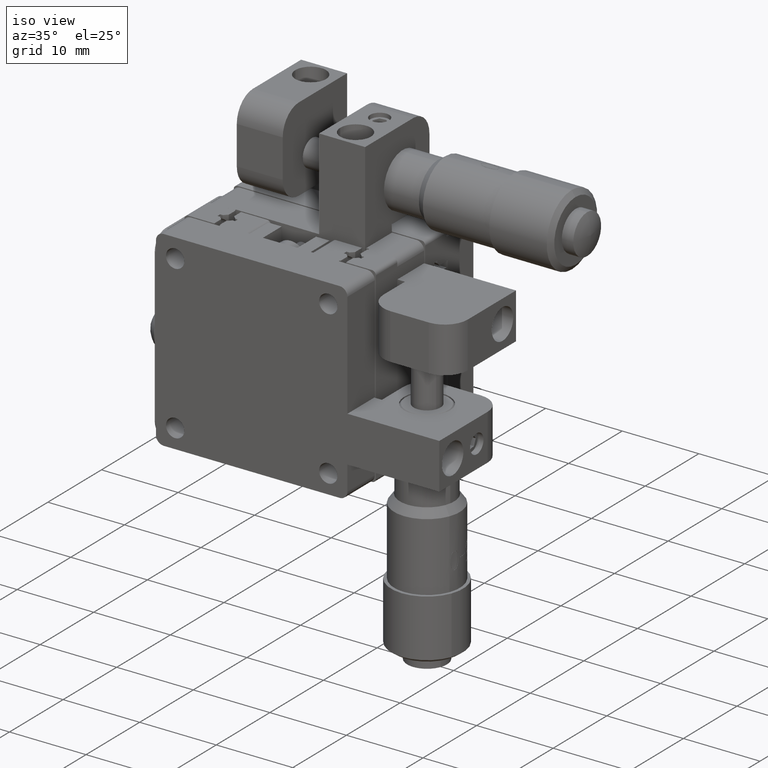
[diagram: clean part render]
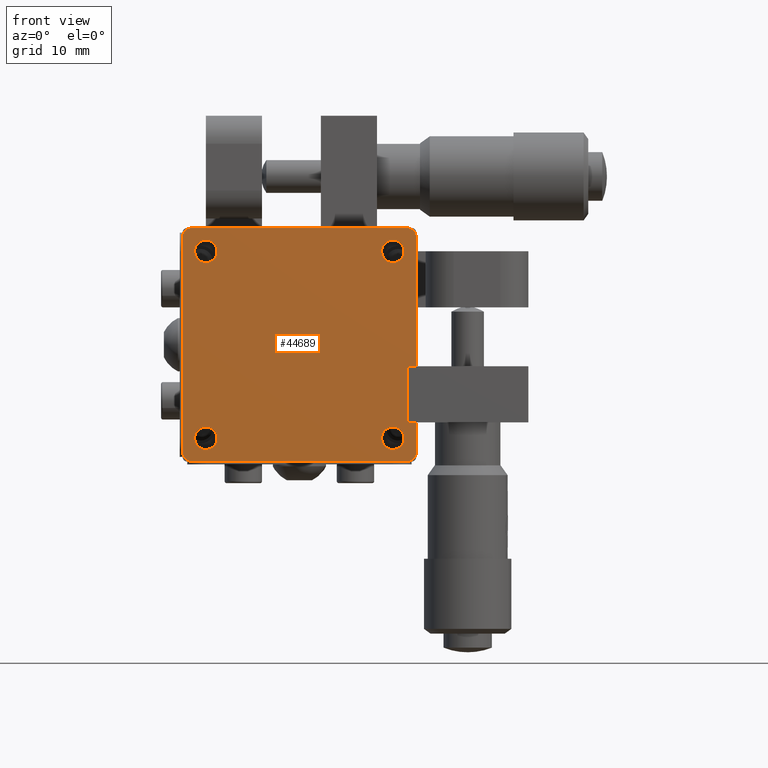
[diagram: tour spotlight — one face highlighted and labeled with its STEP entity id]
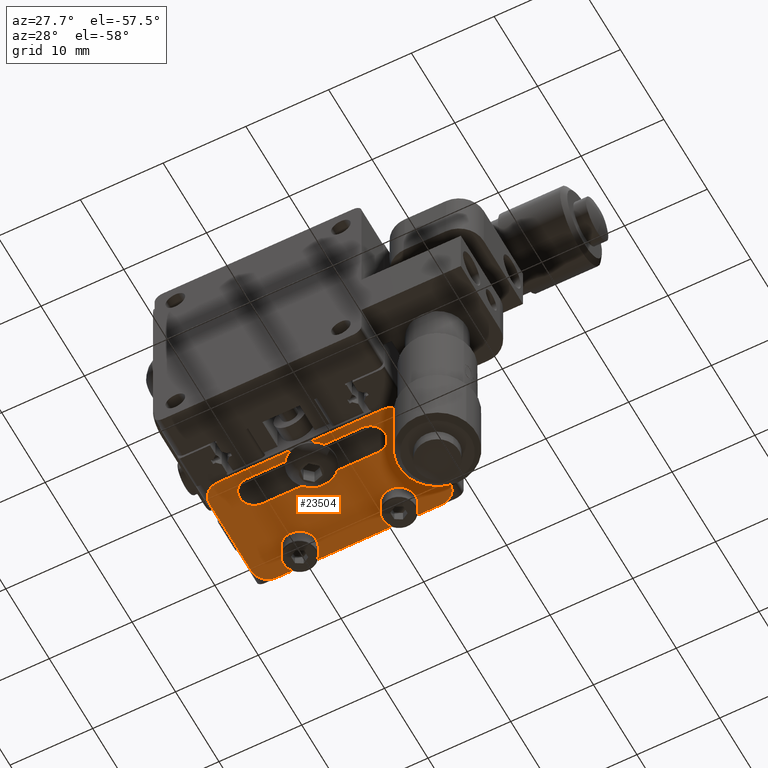
[diagram: tour spotlight — one face highlighted and labeled with its STEP entity id]
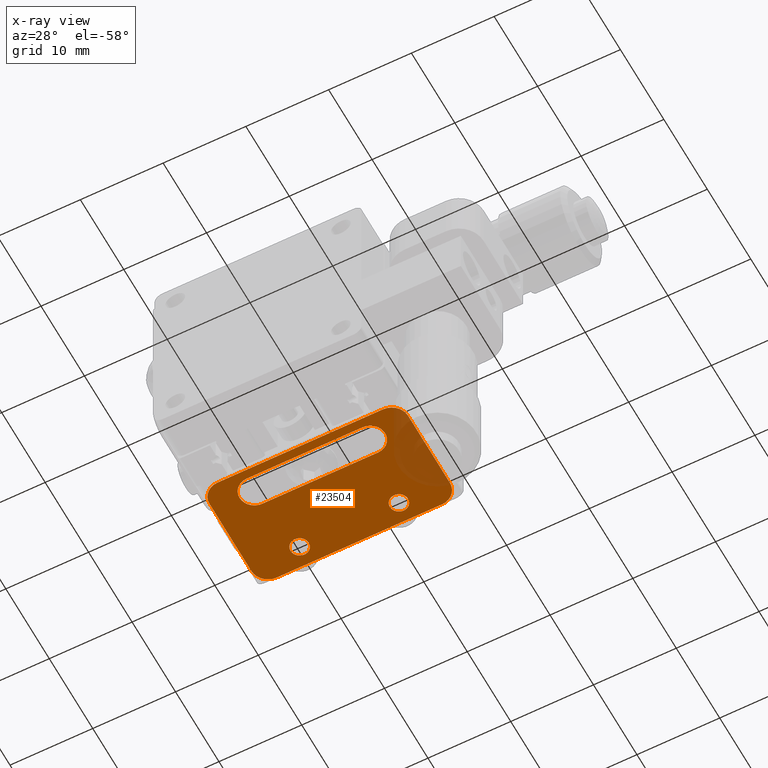
[diagram: x-ray of the same camera — body ghosted, this tour face saturated]
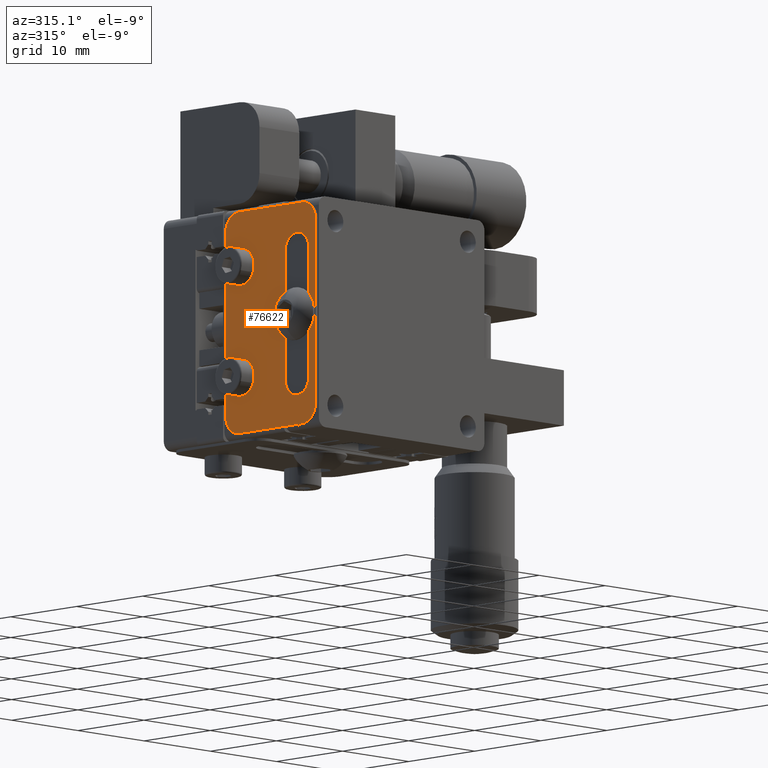
[diagram: tour spotlight — one face highlighted and labeled with its STEP entity id]
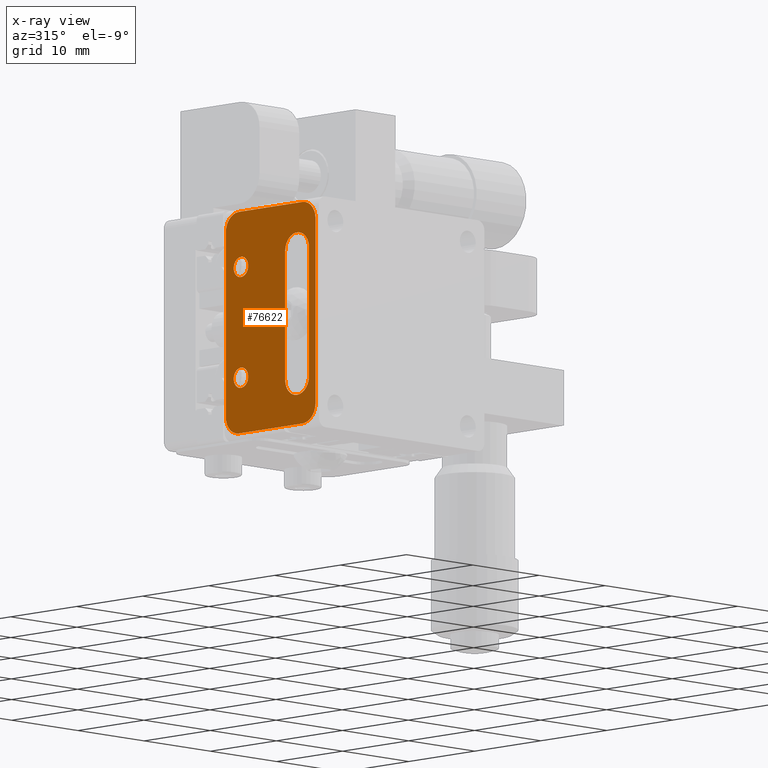
[diagram: x-ray of the same camera — body ghosted, this tour face saturated]
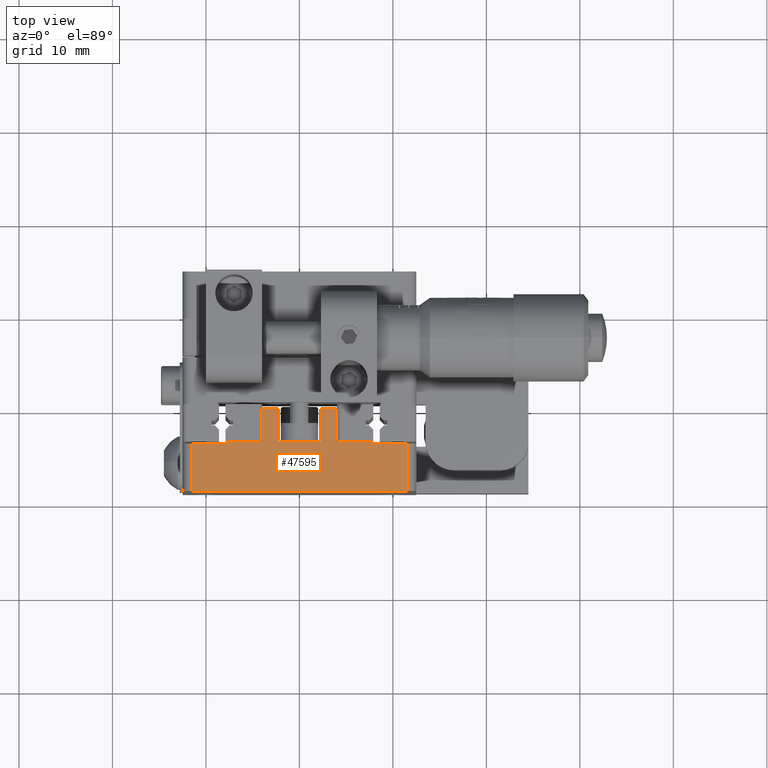
[diagram: tour spotlight — one face highlighted and labeled with its STEP entity id]
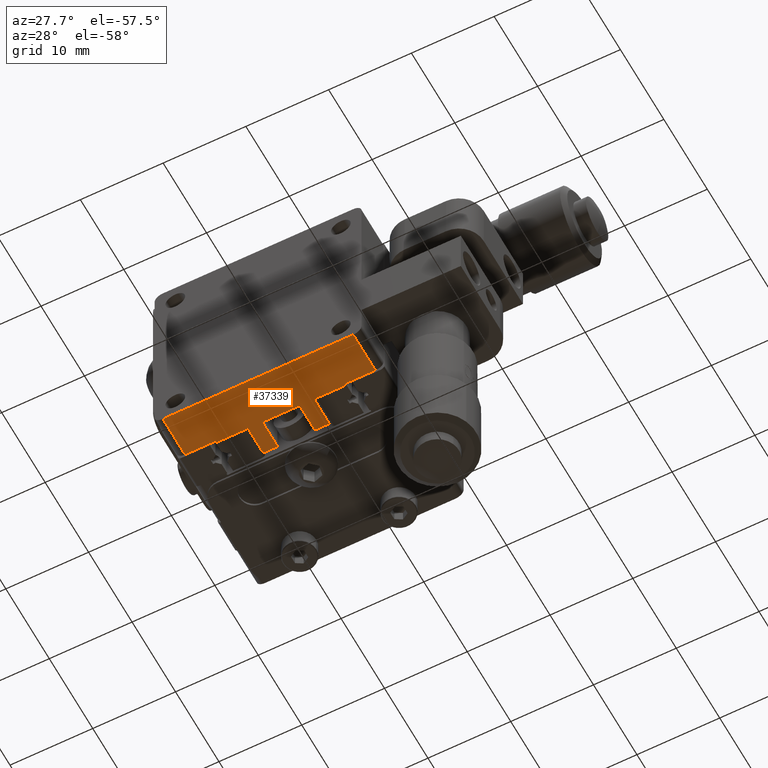
[diagram: tour spotlight — one face highlighted and labeled with its STEP entity id]
A machine part: a face-by-face anatomy tour. The part has 2441 B-rep faces; the first image is the clean iso view, then the 5 largest visible faces are spotlighted one at a time (largest first), each with its STEP entity span.

Face 1 — front view, entity #44689. In plain terms, the highlighted planar face has unit normal (-0, 1, 0).
Definition (entity closure, byte-faithful):
#188 = CARTESIAN_POINT ( 'NONE',  ( -9.999999999999985800, -9.100000000000006800, 10.00000000000000200 ) ) ;
#231 = CARTESIAN_POINT ( 'NONE',  ( -9.999999999999985800, -9.100000000000006800, 8.800000000000004300 ) ) ;
#1613 = ORIENTED_EDGE ( 'NONE', *, *, #65266, .F. ) ;
#4194 = CARTESIAN_POINT ( 'NONE',  ( 10.00000000000001200, -9.100000000000003200, 8.800000000000004300 ) ) ;
#4414 = ORIENTED_EDGE ( 'NONE', *, *, #5681, .T. ) ;
#4537 = EDGE_LOOP ( 'NONE', ( #34926, #17723 ) ) ;
#5005 = ORIENTED_EDGE ( 'NONE', *, *, #20297, .T. ) ;
#5681 = EDGE_CURVE ( 'NONE', #59212, #47392, #50106, .T. ) ;
#5941 = FACE_BOUND ( 'NONE', #45751, .T. ) ;
#7799 = LINE ( 'NONE', #34681, #13582 ) ;
#8628 = CIRCLE ( 'NONE', #27375, 1.000000000000000900 ) ;
#8845 = EDGE_LOOP ( 'NONE', ( #45325, #85805, #1613, #67609, #25484, #79870, #5005, #50121, #56410, #45061, #92503, #13355 ) ) ;
#9909 = CARTESIAN_POINT ( 'NONE',  ( -12.49999999999998400, -9.100000000000001400, 12.50000000000000000 ) ) ;
#10671 = VERTEX_POINT ( 'NONE', #39331 ) ;
#11866 = DIRECTION ( 'NONE',  ( -1.000000000000000000, -1.224646799147353200E-016, 0.0000000000000000000 ) ) ;
#12055 = VERTEX_POINT ( 'NONE', #66267 ) ;
#12358 = VERTEX_POINT ( 'NONE', #82427 ) ;
#12542 = DIRECTION ( 'NONE',  ( 0.0000000000000000000, 0.0000000000000000000, 1.000000000000000000 ) ) ;
#13355 = ORIENTED_EDGE ( 'NONE', *, *, #67647, .F. ) ;
#13582 = VECTOR ( 'NONE', #86579, 1000.000000000000000 ) ;
#14695 = EDGE_CURVE ( 'NONE', #74162, #64838, #30512, .T. ) ;
#14966 = CARTESIAN_POINT ( 'NONE',  ( -12.49999999999998400, -9.100000000000001400, 12.50000000000000000 ) ) ;
#15859 = CARTESIAN_POINT ( 'NONE',  ( -11.49999999999998200, -9.100000000000001400, 11.50000000000000000 ) ) ;
#16736 = AXIS2_PLACEMENT_3D ( 'NONE', #76030, #17253, #61436 ) ;
#16742 = VERTEX_POINT ( 'NONE', #66318 ) ;
#16806 = DIRECTION ( 'NONE',  ( 1.224646799147353200E-016, -1.000000000000000000, -0.0000000000000000000 ) ) ;
#17141 = CARTESIAN_POINT ( 'NONE',  ( -9.999999999999985800, -9.100000000000006800, 10.00000000000000200 ) ) ;
#17253 = DIRECTION ( 'NONE',  ( -0.0000000000000000000, 1.000000000000000000, -0.0000000000000000000 ) ) ;
#17383 = DIRECTION ( 'NONE',  ( 1.000000000000000000, 1.224646799147353200E-016, 0.0000000000000000000 ) ) ;
#17723 = ORIENTED_EDGE ( 'NONE', *, *, #92371, .T. ) ;
#17768 = VERTEX_POINT ( 'NONE', #64488 ) ;
#18709 = VECTOR ( 'NONE', #47813, 1000.000000000000000 ) ;
#19582 = CARTESIAN_POINT ( 'NONE',  ( 12.50000000000002100, -9.099999999999997900, -2.299999999999998900 ) ) ;
#19692 = DIRECTION ( 'NONE',  ( 1.224646799147353200E-016, -1.000000000000000000, -0.0000000000000000000 ) ) ;
#20297 = EDGE_CURVE ( 'NONE', #12055, #95181, #63461, .T. ) ;
#20409 = AXIS2_PLACEMENT_3D ( 'NONE', #34356, #41805, #11866 ) ;
#21313 = DIRECTION ( 'NONE',  ( 0.0000000000000000000, 0.0000000000000000000, -1.000000000000000000 ) ) ;
#21377 = DIRECTION ( 'NONE',  ( 0.0000000000000000000, 0.0000000000000000000, 1.000000000000000000 ) ) ;
#21799 = DIRECTION ( 'NONE',  ( -0.0000000000000000000, -0.0000000000000000000, -1.000000000000000000 ) ) ;
#22059 = EDGE_CURVE ( 'NONE', #47392, #59212, #56257, .T. ) ;
#22702 = CARTESIAN_POINT ( 'NONE',  ( -11.49999999999998200, -9.100000000000001400, -12.50000000000000000 ) ) ;
#22954 = EDGE_CURVE ( 'NONE', #16742, #12358, #27764, .T. ) ;
#23452 = CARTESIAN_POINT ( 'NONE',  ( 11.50000000000002100, -9.099999999999997900, -2.299999999999998900 ) ) ;
#24794 = CIRCLE ( 'NONE', #46499, 1.000000000000000900 ) ;
#25358 = CARTESIAN_POINT ( 'NONE',  ( 10.00000000000001200, -9.100000000000003200, 11.19999999999999900 ) ) ;
#25458 = CARTESIAN_POINT ( 'NONE',  ( 12.50000000000002100, -9.099999999999997900, -8.299999999999998900 ) ) ;
#25484 = ORIENTED_EDGE ( 'NONE', *, *, #82790, .F. ) ;
#26529 = PLANE ( 'NONE',  #20409 ) ;
#27375 = AXIS2_PLACEMENT_3D ( 'NONE', #33041, #76485, #40490 ) ;
#27764 = CIRCLE ( 'NONE', #16736, 1.199999999999998000 ) ;
#28420 = CARTESIAN_POINT ( 'NONE',  ( 11.50000000000002100, -9.099999999999997900, -8.299999999999998900 ) ) ;
#28584 = DIRECTION ( 'NONE',  ( -0.0000000000000000000, 1.000000000000000000, -0.0000000000000000000 ) ) ;
#29569 = AXIS2_PLACEMENT_3D ( 'NONE', #17141, #69030, #68722 ) ;
#30065 = AXIS2_PLACEMENT_3D ( 'NONE', #56983, #86840, #42386 ) ;
#30254 = DIRECTION ( 'NONE',  ( -0.0000000000000000000, 1.000000000000000000, -0.0000000000000000000 ) ) ;
#30512 = LINE ( 'NONE', #23452, #80335 ) ;
#32557 = EDGE_CURVE ( 'NONE', #17768, #85304, #89250, .T. ) ;
#32801 = LINE ( 'NONE', #69471, #18709 ) ;
#32885 = FACE_BOUND ( 'NONE', #79244, .T. ) ;
#33041 = CARTESIAN_POINT ( 'NONE',  ( 11.50000000000002100, -9.099999999999997900, 11.50000000000000000 ) ) ;
#34356 = CARTESIAN_POINT ( 'NONE',  ( -12.49999999999998400, -9.100000000000001400, 12.50000000000000000 ) ) ;
#34397 = CARTESIAN_POINT ( 'NONE',  ( 11.50000000000002100, -9.099999999999997900, -11.50000000000000000 ) ) ;
#34681 = CARTESIAN_POINT ( 'NONE',  ( -12.49999999999998400, -9.100000000000001400, -12.50000000000000000 ) ) ;
#34926 = ORIENTED_EDGE ( 'NONE', *, *, #32557, .T. ) ;
#35332 = EDGE_CURVE ( 'NONE', #95181, #87604, #71428, .T. ) ;
#35899 = DIRECTION ( 'NONE',  ( 1.000000000000000000, -0.0000000000000000000, -0.0000000000000000000 ) ) ;
#37733 = VERTEX_POINT ( 'NONE', #25458 ) ;
#38026 = DIRECTION ( 'NONE',  ( -1.000000000000000000, 0.0000000000000000000, 0.0000000000000000000 ) ) ;
#38242 = VERTEX_POINT ( 'NONE', #85074 ) ;
#38574 = ORIENTED_EDGE ( 'NONE', *, *, #96428, .T. ) ;
#38965 = CARTESIAN_POINT ( 'NONE',  ( 11.50000000000002100, -9.099999999999997900, -8.299999999999998900 ) ) ;
#39146 = AXIS2_PLACEMENT_3D ( 'NONE', #81161, #30254, #89644 ) ;
#39331 = CARTESIAN_POINT ( 'NONE',  ( -9.999999999999985800, -9.100000000000006800, 11.19999999999999900 ) ) ;
#39892 = DIRECTION ( 'NONE',  ( -0.0000000000000000000, 1.000000000000000000, -0.0000000000000000000 ) ) ;
#40490 = DIRECTION ( 'NONE',  ( -1.000000000000000000, 0.0000000000000000000, 0.0000000000000000000 ) ) ;
#41805 = DIRECTION ( 'NONE',  ( -1.224646799147353200E-016, 1.000000000000000000, 0.0000000000000000000 ) ) ;
#41872 = ORIENTED_EDGE ( 'NONE', *, *, #75520, .T. ) ;
#42386 = DIRECTION ( 'NONE',  ( -1.000000000000000000, 0.0000000000000000000, 0.0000000000000000000 ) ) ;
#42467 = CARTESIAN_POINT ( 'NONE',  ( 10.00000000000001200, -9.100000000000003200, 10.00000000000000200 ) ) ;
#42695 = EDGE_CURVE ( 'NONE', #65428, #74225, #24794, .T. ) ;
#43194 = FACE_BOUND ( 'NONE', #4537, .T. ) ;
#43308 = FACE_BOUND ( 'NONE', #90505, .T. ) ;
#43967 = CARTESIAN_POINT ( 'NONE',  ( 11.50000000000002100, -9.099999999999997900, -2.299999999999998900 ) ) ;
#44140 = CARTESIAN_POINT ( 'NONE',  ( 10.00000000000001200, -9.100000000000003200, -9.999999999999998200 ) ) ;
#44689 = ADVANCED_FACE ( 'NONE', ( #5941, #43194, #32885, #43308, #50310 ), #26529, .F. ) ;
#45061 = ORIENTED_EDGE ( 'NONE', *, *, #42695, .T. ) ;
#45325 = ORIENTED_EDGE ( 'NONE', *, *, #46557, .F. ) ;
#45596 = CARTESIAN_POINT ( 'NONE',  ( 11.50000000000002100, -9.099999999999997900, 12.50000000000000000 ) ) ;
#45663 = CIRCLE ( 'NONE', #62864, 1.199999999999998000 ) ;
#45751 = EDGE_LOOP ( 'NONE', ( #38574, #48539 ) ) ;
#46318 = CARTESIAN_POINT ( 'NONE',  ( 12.50000000000002100, -9.099999999999997900, 12.50000000000000000 ) ) ;
#46499 = AXIS2_PLACEMENT_3D ( 'NONE', #34397, #19692, #71601 ) ;
#46557 = EDGE_CURVE ( 'NONE', #74162, #56496, #51220, .T. ) ;
#47392 = VERTEX_POINT ( 'NONE', #4194 ) ;
#47813 = DIRECTION ( 'NONE',  ( -0.0000000000000000000, -0.0000000000000000000, -1.000000000000000000 ) ) ;
#48539 = ORIENTED_EDGE ( 'NONE', *, *, #22954, .T. ) ;
#49338 = VERTEX_POINT ( 'NONE', #45596 ) ;
#49575 = VECTOR ( 'NONE', #21799, 1000.000000000000000 ) ;
#50100 = DIRECTION ( 'NONE',  ( -0.0000000000000000000, 1.000000000000000000, -0.0000000000000000000 ) ) ;
#50106 = CIRCLE ( 'NONE', #74206, 1.199999999999998000 ) ;
#50121 = ORIENTED_EDGE ( 'NONE', *, *, #35332, .T. ) ;
#50310 = FACE_OUTER_BOUND ( 'NONE', #8845, .T. ) ;
#50555 = LINE ( 'NONE', #28420, #57500 ) ;
#51220 = LINE ( 'NONE', #65753, #76653 ) ;
#52131 = CIRCLE ( 'NONE', #58116, 1.199999999999998000 ) ;
#52263 = DIRECTION ( 'NONE',  ( -0.0000000000000000000, 1.000000000000000000, -0.0000000000000000000 ) ) ;
#52509 = CIRCLE ( 'NONE', #85523, 1.000000000000000900 ) ;
#52830 = AXIS2_PLACEMENT_3D ( 'NONE', #42467, #78423, #12542 ) ;
#53537 = DIRECTION ( 'NONE',  ( 0.0000000000000000000, 0.0000000000000000000, 1.000000000000000000 ) ) ;
#56257 = CIRCLE ( 'NONE', #52830, 1.199999999999998000 ) ;
#56410 = ORIENTED_EDGE ( 'NONE', *, *, #74385, .T. ) ;
#56496 = VERTEX_POINT ( 'NONE', #38965 ) ;
#56983 = CARTESIAN_POINT ( 'NONE',  ( -11.49999999999998200, -9.100000000000001400, -11.50000000000000000 ) ) ;
#57500 = VECTOR ( 'NONE', #35899, 1000.000000000000000 ) ;
#58116 = AXIS2_PLACEMENT_3D ( 'NONE', #75878, #39892, #76198 ) ;
#58596 = ORIENTED_EDGE ( 'NONE', *, *, #84468, .T. ) ;
#58885 = CARTESIAN_POINT ( 'NONE',  ( 12.50000000000002100, -9.099999999999997900, -11.50000000000000000 ) ) ;
#59212 = VERTEX_POINT ( 'NONE', #25358 ) ;
#61436 = DIRECTION ( 'NONE',  ( 0.0000000000000000000, 0.0000000000000000000, 1.000000000000000000 ) ) ;
#62014 = VERTEX_POINT ( 'NONE', #74065 ) ;
#62864 = AXIS2_PLACEMENT_3D ( 'NONE', #188, #52263, #53537 ) ;
#63461 = LINE ( 'NONE', #14966, #49575 ) ;
#64488 = CARTESIAN_POINT ( 'NONE',  ( 10.00000000000001200, -9.100000000000003200, -8.800000000000000700 ) ) ;
#64838 = VERTEX_POINT ( 'NONE', #19582 ) ;
#65266 = EDGE_CURVE ( 'NONE', #62014, #64838, #32801, .T. ) ;
#65278 = CARTESIAN_POINT ( 'NONE',  ( 10.00000000000001200, -9.100000000000003200, 10.00000000000000200 ) ) ;
#65428 = VERTEX_POINT ( 'NONE', #86593 ) ;
#65498 = LINE ( 'NONE', #9909, #67826 ) ;
#65753 = CARTESIAN_POINT ( 'NONE',  ( 11.50000000000002100, -9.099999999999997900, -2.299999999999998900 ) ) ;
#66267 = CARTESIAN_POINT ( 'NONE',  ( -12.49999999999998400, -9.100000000000001400, 11.50000000000000000 ) ) ;
#66318 = CARTESIAN_POINT ( 'NONE',  ( -9.999999999999985800, -9.100000000000006800, -11.19999999999999600 ) ) ;
#66632 = VERTEX_POINT ( 'NONE', #231 ) ;
#67609 = ORIENTED_EDGE ( 'NONE', *, *, #81977, .T. ) ;
#67647 = EDGE_CURVE ( 'NONE', #56496, #37733, #50555, .T. ) ;
#67826 = VECTOR ( 'NONE', #17383, 1000.000000000000000 ) ;
#68611 = DIRECTION ( 'NONE',  ( -0.0000000000000000000, -0.0000000000000000000, -1.000000000000000000 ) ) ;
#68722 = DIRECTION ( 'NONE',  ( 0.0000000000000000000, 0.0000000000000000000, 1.000000000000000000 ) ) ;
#68813 = DIRECTION ( 'NONE',  ( 1.000000000000000000, -0.0000000000000000000, -0.0000000000000000000 ) ) ;
#69030 = DIRECTION ( 'NONE',  ( -0.0000000000000000000, 1.000000000000000000, -0.0000000000000000000 ) ) ;
#69471 = CARTESIAN_POINT ( 'NONE',  ( 12.50000000000002100, -9.099999999999997900, 12.50000000000000000 ) ) ;
#69505 = CARTESIAN_POINT ( 'NONE',  ( 10.00000000000001200, -9.100000000000003200, -11.19999999999999600 ) ) ;
#71428 = CIRCLE ( 'NONE', #30065, 1.000000000000000900 ) ;
#71601 = DIRECTION ( 'NONE',  ( -1.000000000000000000, 0.0000000000000000000, 0.0000000000000000000 ) ) ;
#74065 = CARTESIAN_POINT ( 'NONE',  ( 12.50000000000002100, -9.099999999999997900, 11.50000000000000000 ) ) ;
#74162 = VERTEX_POINT ( 'NONE', #43967 ) ;
#74206 = AXIS2_PLACEMENT_3D ( 'NONE', #65278, #50100, #78902 ) ;
#74225 = VERTEX_POINT ( 'NONE', #58885 ) ;
#74385 = EDGE_CURVE ( 'NONE', #87604, #65428, #7799, .T. ) ;
#75520 = EDGE_CURVE ( 'NONE', #10671, #66632, #89745, .T. ) ;
#75878 = CARTESIAN_POINT ( 'NONE',  ( -9.999999999999985800, -9.100000000000006800, -9.999999999999998200 ) ) ;
#76030 = CARTESIAN_POINT ( 'NONE',  ( -9.999999999999985800, -9.100000000000006800, -9.999999999999998200 ) ) ;
#76198 = DIRECTION ( 'NONE',  ( 0.0000000000000000000, 0.0000000000000000000, 1.000000000000000000 ) ) ;
#76485 = DIRECTION ( 'NONE',  ( 1.224646799147353200E-016, -1.000000000000000000, -0.0000000000000000000 ) ) ;
#76653 = VECTOR ( 'NONE', #21313, 1000.000000000000000 ) ;
#76763 = EDGE_CURVE ( 'NONE', #38242, #12055, #52509, .T. ) ;
#78423 = DIRECTION ( 'NONE',  ( -0.0000000000000000000, 1.000000000000000000, -0.0000000000000000000 ) ) ;
#78902 = DIRECTION ( 'NONE',  ( 0.0000000000000000000, 0.0000000000000000000, 1.000000000000000000 ) ) ;
#79244 = EDGE_LOOP ( 'NONE', ( #4414, #90782 ) ) ;
#79599 = VECTOR ( 'NONE', #68611, 1000.000000000000000 ) ;
#79870 = ORIENTED_EDGE ( 'NONE', *, *, #76763, .T. ) ;
#80335 = VECTOR ( 'NONE', #68813, 1000.000000000000000 ) ;
#81161 = CARTESIAN_POINT ( 'NONE',  ( 10.00000000000001200, -9.100000000000003200, -9.999999999999998200 ) ) ;
#81209 = EDGE_CURVE ( 'NONE', #37733, #74225, #86628, .T. ) ;
#81977 = EDGE_CURVE ( 'NONE', #62014, #49338, #8628, .T. ) ;
#82427 = CARTESIAN_POINT ( 'NONE',  ( -9.999999999999985800, -9.100000000000006800, -8.800000000000000700 ) ) ;
#82790 = EDGE_CURVE ( 'NONE', #38242, #49338, #65498, .T. ) ;
#84468 = EDGE_CURVE ( 'NONE', #66632, #10671, #45663, .T. ) ;
#84979 = CIRCLE ( 'NONE', #90258, 1.199999999999998000 ) ;
#85074 = CARTESIAN_POINT ( 'NONE',  ( -11.49999999999998200, -9.100000000000001400, 12.50000000000000000 ) ) ;
#85304 = VERTEX_POINT ( 'NONE', #69505 ) ;
#85523 = AXIS2_PLACEMENT_3D ( 'NONE', #15859, #16806, #38026 ) ;
#85805 = ORIENTED_EDGE ( 'NONE', *, *, #14695, .T. ) ;
#86579 = DIRECTION ( 'NONE',  ( 1.000000000000000000, 1.224646799147353200E-016, 0.0000000000000000000 ) ) ;
#86593 = CARTESIAN_POINT ( 'NONE',  ( 11.50000000000002100, -9.099999999999997900, -12.50000000000000000 ) ) ;
#86628 = LINE ( 'NONE', #46318, #79599 ) ;
#86840 = DIRECTION ( 'NONE',  ( 1.224646799147353200E-016, -1.000000000000000000, -0.0000000000000000000 ) ) ;
#87604 = VERTEX_POINT ( 'NONE', #22702 ) ;
#89250 = CIRCLE ( 'NONE', #39146, 1.199999999999998000 ) ;
#89644 = DIRECTION ( 'NONE',  ( 0.0000000000000000000, 0.0000000000000000000, 1.000000000000000000 ) ) ;
#89745 = CIRCLE ( 'NONE', #29569, 1.199999999999998000 ) ;
#90258 = AXIS2_PLACEMENT_3D ( 'NONE', #44140, #28584, #21377 ) ;
#90505 = EDGE_LOOP ( 'NONE', ( #41872, #58596 ) ) ;
#90782 = ORIENTED_EDGE ( 'NONE', *, *, #22059, .T. ) ;
#92241 = CARTESIAN_POINT ( 'NONE',  ( -12.49999999999998400, -9.100000000000001400, -11.50000000000000000 ) ) ;
#92371 = EDGE_CURVE ( 'NONE', #85304, #17768, #84979, .T. ) ;
#92503 = ORIENTED_EDGE ( 'NONE', *, *, #81209, .F. ) ;
#95181 = VERTEX_POINT ( 'NONE', #92241 ) ;
#96428 = EDGE_CURVE ( 'NONE', #12358, #16742, #52131, .T. ) ;

Face 2 — auxiliary view, entity #23504. An x-ray twin of the same camera follows (body ghosted, this face saturated) — the face is partly hidden behind the body. In plain terms, the highlighted planar face has unit normal (-0, -0, -1).
Definition (entity closure, byte-faithful):
#260 = DIRECTION ( 'NONE',  ( 1.000000000000000000, -9.692600756110412900E-016, -6.047645734845986500E-016 ) ) ;
#617 = EDGE_CURVE ( 'NONE', #49656, #79320, #2215, .T. ) ;
#979 = ORIENTED_EDGE ( 'NONE', *, *, #57764, .T. ) ;
#1431 = CARTESIAN_POINT ( 'NONE',  ( -5.999999999999870300, 11.89999999999998400, -12.80000000000002000 ) ) ;
#1879 = ORIENTED_EDGE ( 'NONE', *, *, #58968, .T. ) ;
#2215 = CIRCLE ( 'NONE', #50396, 1.799999999999996000 ) ;
#2654 = EDGE_CURVE ( 'NONE', #89813, #23583, #31139, .T. ) ;
#2892 = CARTESIAN_POINT ( 'NONE',  ( -9.999999999999881000, 0.5999999999999912100, -12.80000000000003100 ) ) ;
#4857 = VERTEX_POINT ( 'NONE', #14200 ) ;
#5079 = CARTESIAN_POINT ( 'NONE',  ( 4.900000000000088300, 11.89999999999997200, -12.80000000000005900 ) ) ;
#5582 = CIRCLE ( 'NONE', #72668, 1.099999999999996800 ) ;
#6820 = LINE ( 'NONE', #37211, #76516 ) ;
#8056 = AXIS2_PLACEMENT_3D ( 'NONE', #40351, #54964, #17881 ) ;
#9497 = EDGE_CURVE ( 'NONE', #51261, #14415, #82269, .T. ) ;
#9604 = DIRECTION ( 'NONE',  ( -1.000000000000000000, 1.577021341797101900E-015, 0.0000000000000000000 ) ) ;
#9886 = VERTEX_POINT ( 'NONE', #54159 ) ;
#10639 = ORIENTED_EDGE ( 'NONE', *, *, #23123, .T. ) ;
#11162 = CARTESIAN_POINT ( 'NONE',  ( 6.000000000000085300, 11.89999999999997000, -12.80000000000005900 ) ) ;
#12174 = ORIENTED_EDGE ( 'NONE', *, *, #9497, .T. ) ;
#12515 = AXIS2_PLACEMENT_3D ( 'NONE', #67251, #60797, #53068 ) ;
#13161 = LINE ( 'NONE', #18101, #50393 ) ;
#13594 = LINE ( 'NONE', #19980, #87989 ) ;
#14200 = CARTESIAN_POINT ( 'NONE',  ( -11.99999999999986900, 12.19999999999997600, -12.80000000000005200 ) ) ;
#14415 = VERTEX_POINT ( 'NONE', #50480 ) ;
#14722 = EDGE_CURVE ( 'NONE', #89895, #27323, #51470, .T. ) ;
#16430 = AXIS2_PLACEMENT_3D ( 'NONE', #1431, #53169, #67669 ) ;
#16496 = EDGE_CURVE ( 'NONE', #26240, #90314, #47599, .T. ) ;
#17881 = DIRECTION ( 'NONE',  ( 1.000000000000000000, -8.673617379884057200E-016, -8.673617379884057200E-016 ) ) ;
#18101 = CARTESIAN_POINT ( 'NONE',  ( 12.00000000000006200, 0.5999999999999634500, -12.80000000000005600 ) ) ;
#18242 = ORIENTED_EDGE ( 'NONE', *, *, #81206, .F. ) ;
#19980 = CARTESIAN_POINT ( 'NONE',  ( 12.00000000000006200, 14.19999999999996200, -12.80000000000004500 ) ) ;
#20701 = VERTEX_POINT ( 'NONE', #40656 ) ;
#22786 = EDGE_CURVE ( 'NONE', #79320, #51261, #6820, .T. ) ;
#23123 = EDGE_CURVE ( 'NONE', #4857, #74888, #24279, .T. ) ;
#23347 = CARTESIAN_POINT ( 'NONE',  ( 12.00000000000006200, 14.19999999999996200, -12.80000000000004500 ) ) ;
#23504 = ADVANCED_FACE ( 'NONE', ( #42514, #43653, #72618, #58728 ), #45141, .T. ) ;
#23583 = VERTEX_POINT ( 'NONE', #37747 ) ;
#23624 = ORIENTED_EDGE ( 'NONE', *, *, #95558, .T. ) ;
#23784 = EDGE_LOOP ( 'NONE', ( #12174, #1879, #77137, #50968, #70852 ) ) ;
#24055 = DIRECTION ( 'NONE',  ( -1.000000000000000000, 9.637352644315620400E-016, 9.637352644315620400E-016 ) ) ;
#24279 = CIRCLE ( 'NONE', #8056, 1.999999999999994900 ) ;
#25006 = DIRECTION ( 'NONE',  ( 1.670591783853796100E-016, 1.276756478318937500E-015, 1.000000000000000000 ) ) ;
#26240 = VERTEX_POINT ( 'NONE', #5079 ) ;
#26807 = CARTESIAN_POINT ( 'NONE',  ( -6.999999999999877400, 3.399999999999986100, -12.80000000000001500 ) ) ;
#27323 = VERTEX_POINT ( 'NONE', #65565 ) ;
#27397 = CARTESIAN_POINT ( 'NONE',  ( -9.999999999999863200, 14.19999999999997300, -12.80000000000002000 ) ) ;
#28059 = AXIS2_PLACEMENT_3D ( 'NONE', #82738, #32812, #52948 ) ;
#28209 = EDGE_CURVE ( 'NONE', #89813, #82807, #13161, .T. ) ;
#29571 = CARTESIAN_POINT ( 'NONE',  ( -6.999999999999877400, 3.399999999999986100, -12.80000000000001500 ) ) ;
#30319 = CIRCLE ( 'NONE', #12515, 1.999999999999994900 ) ;
#31139 = CIRCLE ( 'NONE', #28059, 1.999999999999994900 ) ;
#31202 = AXIS2_PLACEMENT_3D ( 'NONE', #75602, #90281, #260 ) ;
#31382 = EDGE_LOOP ( 'NONE', ( #54401, #86324 ) ) ;
#32812 = DIRECTION ( 'NONE',  ( -1.670591783853796100E-016, -1.276756478318937500E-015, -1.000000000000000000 ) ) ;
#32836 = CARTESIAN_POINT ( 'NONE',  ( 12.00000000000007800, 12.19999999999996200, -12.80000000000002700 ) ) ;
#33326 = DIRECTION ( 'NONE',  ( -1.000000000000000000, 1.577021341797101900E-015, 0.0000000000000000000 ) ) ;
#33944 = CARTESIAN_POINT ( 'NONE',  ( -6.999999999999874800, 5.199999999999986000, -12.80000000000003300 ) ) ;
#34299 = DIRECTION ( 'NONE',  ( -1.000000000000000000, 9.637352644315616400E-016, 9.637352644315616400E-016 ) ) ;
#35864 = EDGE_LOOP ( 'NONE', ( #39903, #23624 ) ) ;
#36217 = VERTEX_POINT ( 'NONE', #32836 ) ;
#36362 = AXIS2_PLACEMENT_3D ( 'NONE', #11162, #77693, #33326 ) ;
#37211 = CARTESIAN_POINT ( 'NONE',  ( 7.000000000000073700, 1.599999999999971200, -12.80000000000005400 ) ) ;
#37680 = AXIS2_PLACEMENT_3D ( 'NONE', #26807, #85888, #34299 ) ;
#37747 = CARTESIAN_POINT ( 'NONE',  ( -11.99999999999987900, 2.599999999999977400, -12.80000000000004700 ) ) ;
#38156 = VECTOR ( 'NONE', #74181, 1000.000000000000000 ) ;
#38498 = AXIS2_PLACEMENT_3D ( 'NONE', #39047, #25006, #24055 ) ;
#38923 = ORIENTED_EDGE ( 'NONE', *, *, #95139, .T. ) ;
#39047 = CARTESIAN_POINT ( 'NONE',  ( 7.000000000000066600, 3.399999999999968800, -12.80000000000003600 ) ) ;
#39073 = CARTESIAN_POINT ( 'NONE',  ( -6.999999999999881000, 1.599999999999988500, -12.80000000000004900 ) ) ;
#39493 = CARTESIAN_POINT ( 'NONE',  ( -11.99999999999986500, 14.19999999999997600, -12.80000000000005400 ) ) ;
#39513 = EDGE_CURVE ( 'NONE', #9886, #36217, #42708, .T. ) ;
#39879 = EDGE_CURVE ( 'NONE', #20701, #74888, #13594, .T. ) ;
#39903 = ORIENTED_EDGE ( 'NONE', *, *, #14722, .T. ) ;
#40351 = CARTESIAN_POINT ( 'NONE',  ( -9.999999999999866800, 12.19999999999999000, -12.80000000000001800 ) ) ;
#40656 = CARTESIAN_POINT ( 'NONE',  ( 10.00000000000006200, 14.19999999999994800, -12.80000000000006300 ) ) ;
#40781 = VERTEX_POINT ( 'NONE', #33944 ) ;
#41304 = CARTESIAN_POINT ( 'NONE',  ( 7.100000000000084900, 11.89999999999996800, -12.80000000000005900 ) ) ;
#42130 = DIRECTION ( 'NONE',  ( -1.000000000000000000, 9.692600756110412900E-016, 6.047645734845986500E-016 ) ) ;
#42514 = FACE_BOUND ( 'NONE', #23784, .T. ) ;
#42708 = LINE ( 'NONE', #23347, #55479 ) ;
#43653 = FACE_BOUND ( 'NONE', #31382, .T. ) ;
#45141 = PLANE ( 'NONE',  #31202 ) ;
#45277 = AXIS2_PLACEMENT_3D ( 'NONE', #80817, #51672, #73652 ) ;
#45588 = DIRECTION ( 'NONE',  ( 1.000000000000000000, -9.692600756110405000E-016, -6.047645734845988500E-016 ) ) ;
#45912 = CARTESIAN_POINT ( 'NONE',  ( 7.000000000000073700, 1.599999999999971200, -12.80000000000005400 ) ) ;
#47599 = CIRCLE ( 'NONE', #36362, 1.099999999999996800 ) ;
#47961 = CARTESIAN_POINT ( 'NONE',  ( 6.000000000000085300, 11.89999999999997000, -12.80000000000005900 ) ) ;
#48110 = ORIENTED_EDGE ( 'NONE', *, *, #39513, .F. ) ;
#48664 = DIRECTION ( 'NONE',  ( 1.000000000000000000, -9.692600756110412900E-016, -6.047645734845986500E-016 ) ) ;
#49656 = VERTEX_POINT ( 'NONE', #72362 ) ;
#50393 = VECTOR ( 'NONE', #48664, 1000.000000000000000 ) ;
#50396 = AXIS2_PLACEMENT_3D ( 'NONE', #29571, #88614, #80119 ) ;
#50480 = CARTESIAN_POINT ( 'NONE',  ( 7.000000000000078200, 5.199999999999968200, -12.80000000000005600 ) ) ;
#50968 = ORIENTED_EDGE ( 'NONE', *, *, #617, .T. ) ;
#51261 = VERTEX_POINT ( 'NONE', #45912 ) ;
#51470 = CIRCLE ( 'NONE', #75359, 1.099999999999996800 ) ;
#51672 = DIRECTION ( 'NONE',  ( -1.670591783853796100E-016, -1.276756478318937500E-015, -1.000000000000000000 ) ) ;
#52948 = DIRECTION ( 'NONE',  ( 1.000000000000000000, -8.673617379884057200E-016, -8.673617379884057200E-016 ) ) ;
#53068 = DIRECTION ( 'NONE',  ( 1.000000000000000000, -8.673617379884057200E-016, -8.673617379884057200E-016 ) ) ;
#53169 = DIRECTION ( 'NONE',  ( 1.670591783853796100E-016, 1.276756478318937500E-015, 1.000000000000000000 ) ) ;
#53691 = DIRECTION ( 'NONE',  ( 1.670591783853796100E-016, 1.276756478318937500E-015, 1.000000000000000000 ) ) ;
#54159 = CARTESIAN_POINT ( 'NONE',  ( 12.00000000000006600, 2.599999999999963200, -12.80000000000003800 ) ) ;
#54401 = ORIENTED_EDGE ( 'NONE', *, *, #16496, .T. ) ;
#54964 = DIRECTION ( 'NONE',  ( -1.670591783853796100E-016, -1.276756478318937500E-015, -1.000000000000000000 ) ) ;
#55479 = VECTOR ( 'NONE', #89937, 1000.000000000000000 ) ;
#57764 = EDGE_CURVE ( 'NONE', #9886, #82807, #60337, .T. ) ;
#57821 = LINE ( 'NONE', #81026, #38156 ) ;
#58728 = FACE_OUTER_BOUND ( 'NONE', #90963, .T. ) ;
#58766 = EDGE_CURVE ( 'NONE', #90314, #26240, #5582, .T. ) ;
#58968 = EDGE_CURVE ( 'NONE', #14415, #40781, #57821, .T. ) ;
#60337 = CIRCLE ( 'NONE', #45277, 1.999999999999994900 ) ;
#60797 = DIRECTION ( 'NONE',  ( -1.670591783853796100E-016, -1.276756478318937500E-015, -1.000000000000000000 ) ) ;
#63810 = EDGE_CURVE ( 'NONE', #40781, #49656, #82759, .T. ) ;
#65565 = CARTESIAN_POINT ( 'NONE',  ( -4.899999999999870700, 11.89999999999998400, -12.80000000000002000 ) ) ;
#67251 = CARTESIAN_POINT ( 'NONE',  ( 10.00000000000007800, 12.19999999999996400, -12.80000000000006100 ) ) ;
#67669 = DIRECTION ( 'NONE',  ( -1.000000000000000000, 1.577021341797101900E-015, 0.0000000000000000000 ) ) ;
#69230 = DIRECTION ( 'NONE',  ( -1.580630779504603100E-015, -1.000000000000000000, -1.387778780781490000E-016 ) ) ;
#70244 = LINE ( 'NONE', #39493, #91310 ) ;
#70852 = ORIENTED_EDGE ( 'NONE', *, *, #22786, .T. ) ;
#72362 = CARTESIAN_POINT ( 'NONE',  ( -8.799999999999878100, 3.399999999999987900, -12.80000000000001500 ) ) ;
#72618 = FACE_BOUND ( 'NONE', #35864, .T. ) ;
#72668 = AXIS2_PLACEMENT_3D ( 'NONE', #47961, #77409, #9604 ) ;
#73652 = DIRECTION ( 'NONE',  ( 1.000000000000000000, -8.673617379884057200E-016, -8.673617379884057200E-016 ) ) ;
#74181 = DIRECTION ( 'NONE',  ( -1.000000000000000000, 9.692600756110405000E-016, 6.047645734845988500E-016 ) ) ;
#74888 = VERTEX_POINT ( 'NONE', #27397 ) ;
#74911 = ORIENTED_EDGE ( 'NONE', *, *, #2654, .T. ) ;
#75359 = AXIS2_PLACEMENT_3D ( 'NONE', #83804, #53691, #90983 ) ;
#75602 = CARTESIAN_POINT ( 'NONE',  ( 12.00000000000006200, 0.5999999999999634500, -12.80000000000005600 ) ) ;
#76516 = VECTOR ( 'NONE', #45588, 1000.000000000000000 ) ;
#77137 = ORIENTED_EDGE ( 'NONE', *, *, #63810, .T. ) ;
#77409 = DIRECTION ( 'NONE',  ( 1.670591783853796100E-016, 1.276756478318937500E-015, 1.000000000000000000 ) ) ;
#77693 = DIRECTION ( 'NONE',  ( 1.670591783853796100E-016, 1.276756478318937500E-015, 1.000000000000000000 ) ) ;
#79320 = VERTEX_POINT ( 'NONE', #39073 ) ;
#80119 = DIRECTION ( 'NONE',  ( -1.000000000000000000, 9.637352644315616400E-016, 9.637352644315616400E-016 ) ) ;
#80817 = CARTESIAN_POINT ( 'NONE',  ( 10.00000000000006600, 2.599999999999947700, -12.80000000000007400 ) ) ;
#81026 = CARTESIAN_POINT ( 'NONE',  ( 7.000000000000078200, 5.199999999999968200, -12.80000000000005600 ) ) ;
#81206 = EDGE_CURVE ( 'NONE', #4857, #23583, #70244, .T. ) ;
#82269 = CIRCLE ( 'NONE', #38498, 1.799999999999995200 ) ;
#82738 = CARTESIAN_POINT ( 'NONE',  ( -9.999999999999877400, 2.599999999999973900, -12.80000000000001300 ) ) ;
#82759 = CIRCLE ( 'NONE', #37680, 1.799999999999996000 ) ;
#82807 = VERTEX_POINT ( 'NONE', #93339 ) ;
#83804 = CARTESIAN_POINT ( 'NONE',  ( -5.999999999999870300, 11.89999999999998400, -12.80000000000002000 ) ) ;
#85065 = CARTESIAN_POINT ( 'NONE',  ( -7.099999999999866400, 11.89999999999998600, -12.80000000000002000 ) ) ;
#85888 = DIRECTION ( 'NONE',  ( 1.670591783853796100E-016, 1.276756478318937500E-015, 1.000000000000000000 ) ) ;
#86324 = ORIENTED_EDGE ( 'NONE', *, *, #58766, .T. ) ;
#86376 = ORIENTED_EDGE ( 'NONE', *, *, #28209, .F. ) ;
#87400 = ORIENTED_EDGE ( 'NONE', *, *, #39879, .F. ) ;
#87989 = VECTOR ( 'NONE', #42130, 1000.000000000000000 ) ;
#88614 = DIRECTION ( 'NONE',  ( 1.670591783853796100E-016, 1.276756478318937500E-015, 1.000000000000000000 ) ) ;
#89813 = VERTEX_POINT ( 'NONE', #2892 ) ;
#89895 = VERTEX_POINT ( 'NONE', #85065 ) ;
#89937 = DIRECTION ( 'NONE',  ( 1.580630779504603100E-015, 1.000000000000000000, 1.387778780781490000E-016 ) ) ;
#90281 = DIRECTION ( 'NONE',  ( -6.047645734845999300E-016, -1.276756478318936900E-015, -1.000000000000000000 ) ) ;
#90314 = VERTEX_POINT ( 'NONE', #41304 ) ;
#90963 = EDGE_LOOP ( 'NONE', ( #48110, #979, #86376, #74911, #18242, #10639, #87400, #38923 ) ) ;
#90983 = DIRECTION ( 'NONE',  ( -1.000000000000000000, 1.577021341797101900E-015, 0.0000000000000000000 ) ) ;
#91310 = VECTOR ( 'NONE', #69230, 1000.000000000000000 ) ;
#93339 = CARTESIAN_POINT ( 'NONE',  ( 10.00000000000006200, 0.5999999999999478000, -12.80000000000007200 ) ) ;
#95139 = EDGE_CURVE ( 'NONE', #20701, #36217, #30319, .T. ) ;
#95558 = EDGE_CURVE ( 'NONE', #27323, #89895, #96379, .T. ) ;
#96379 = CIRCLE ( 'NONE', #16430, 1.099999999999996800 ) ;

Face 3 — auxiliary view, entity #76622. An x-ray twin of the same camera follows (body ghosted, this face saturated) — the face is partly hidden behind the body. In plain terms, the highlighted planar face has unit normal (1, -0, -0).
Definition (entity closure, byte-faithful):
#37 = CARTESIAN_POINT ( 'NONE',  ( -12.79999999999993300, -6.900000000000019000, -11.99999999999993600 ) ) ;
#1412 = EDGE_CURVE ( 'NONE', #37633, #48792, #57975, .T. ) ;
#1883 = DIRECTION ( 'NONE',  ( 0.0000000000000000000, -4.818676322157808200E-016, -1.000000000000000000 ) ) ;
#1953 = CARTESIAN_POINT ( 'NONE',  ( -12.79999999999993100, -4.300000000000003400, 7.000000000000021300 ) ) ;
#2141 = AXIS2_PLACEMENT_3D ( 'NONE', #57147, #6423, #95072 ) ;
#2990 = EDGE_CURVE ( 'NONE', #68682, #37469, #12369, .T. ) ;
#4168 = EDGE_CURVE ( 'NONE', #18187, #13543, #16875, .T. ) ;
#4335 = EDGE_CURVE ( 'NONE', #63026, #53786, #44783, .T. ) ;
#4733 = DIRECTION ( 'NONE',  ( -1.000000000000000000, 6.383782391594718100E-016, -1.418593624699634200E-016 ) ) ;
#6423 = DIRECTION ( 'NONE',  ( 1.000000000000000000, -6.383782391594720100E-016, -3.286626513878654400E-016 ) ) ;
#7156 = ORIENTED_EDGE ( 'NONE', *, *, #2990, .F. ) ;
#8158 = CIRCLE ( 'NONE', #12748, 1.799999999999996000 ) ;
#9520 = ORIENTED_EDGE ( 'NONE', *, *, #80056, .T. ) ;
#9793 = EDGE_CURVE ( 'NONE', #48792, #37633, #29985, .T. ) ;
#10758 = DIRECTION ( 'NONE',  ( -3.286626513878659300E-016, -3.140046099259784500E-016, -1.000000000000000000 ) ) ;
#11376 = EDGE_CURVE ( 'NONE', #19495, #68682, #89677, .T. ) ;
#11616 = EDGE_CURVE ( 'NONE', #37469, #74455, #47729, .T. ) ;
#12275 = DIRECTION ( 'NONE',  ( 0.0000000000000000000, -3.942553354492754900E-016, -1.000000000000000000 ) ) ;
#12369 = LINE ( 'NONE', #25401, #58934 ) ;
#12448 = CIRCLE ( 'NONE', #85345, 1.999999999999994900 ) ;
#12748 = AXIS2_PLACEMENT_3D ( 'NONE', #90904, #84029, #1883 ) ;
#13543 = VERTEX_POINT ( 'NONE', #14359 ) ;
#14359 = CARTESIAN_POINT ( 'NONE',  ( -12.79999999999996700, 4.699999999999980600, -9.999999999999934300 ) ) ;
#15330 = VERTEX_POINT ( 'NONE', #80961 ) ;
#15893 = ORIENTED_EDGE ( 'NONE', *, *, #11616, .F. ) ;
#16875 = LINE ( 'NONE', #94192, #43779 ) ;
#17007 = LINE ( 'NONE', #21333, #76268 ) ;
#17942 = ORIENTED_EDGE ( 'NONE', *, *, #74247, .T. ) ;
#18187 = VERTEX_POINT ( 'NONE', #55989 ) ;
#18378 = EDGE_CURVE ( 'NONE', #79993, #63026, #70592, .T. ) ;
#18417 = CARTESIAN_POINT ( 'NONE',  ( -12.79999999999993300, -7.900000000000000400, -6.999999999999935200 ) ) ;
#19150 = AXIS2_PLACEMENT_3D ( 'NONE', #51744, #66248, #21814 ) ;
#19495 = VERTEX_POINT ( 'NONE', #66435 ) ;
#19707 = DIRECTION ( 'NONE',  ( -1.000000000000000000, 6.383782391594718100E-016, -1.418593624699634200E-016 ) ) ;
#20354 = DIRECTION ( 'NONE',  ( 0.0000000000000000000, -4.818676322157808200E-016, -1.000000000000000000 ) ) ;
#21070 = PLANE ( 'NONE',  #2141 ) ;
#21333 = CARTESIAN_POINT ( 'NONE',  ( -12.79999999999993000, -8.900000000000002100, 12.00000000000001200 ) ) ;
#21552 = DIRECTION ( 'NONE',  ( -1.000000000000000000, 6.383782391594718100E-016, -1.418593624699634200E-016 ) ) ;
#21814 = DIRECTION ( 'NONE',  ( 0.0000000000000000000, -3.942553354492754900E-016, -1.000000000000000000 ) ) ;
#23701 = ORIENTED_EDGE ( 'NONE', *, *, #75102, .F. ) ;
#25401 = CARTESIAN_POINT ( 'NONE',  ( -12.79999999999993100, -4.300000000000003400, 7.000000000000021300 ) ) ;
#25902 = CARTESIAN_POINT ( 'NONE',  ( -12.79999999999993300, 4.699999999999980600, -11.99999999999993600 ) ) ;
#27245 = DIRECTION ( 'NONE',  ( 0.0000000000000000000, -3.942553354492754900E-016, -1.000000000000000000 ) ) ;
#27473 = AXIS2_PLACEMENT_3D ( 'NONE', #73717, #58180, #81204 ) ;
#28845 = CARTESIAN_POINT ( 'NONE',  ( -12.79999999999995100, -4.300000000000003400, -6.999999999999935200 ) ) ;
#29985 = CIRCLE ( 'NONE', #42148, 1.099999999999996800 ) ;
#33495 = DIRECTION ( 'NONE',  ( -1.000000000000000000, 6.383782391594718100E-016, -1.418593624699634200E-016 ) ) ;
#34139 = EDGE_LOOP ( 'NONE', ( #7156, #38966, #23701, #58240, #15893 ) ) ;
#34231 = CARTESIAN_POINT ( 'NONE',  ( -12.79999999999991200, -8.900000000000019900, 10.00000000000001200 ) ) ;
#36677 = VERTEX_POINT ( 'NONE', #51306 ) ;
#37469 = VERTEX_POINT ( 'NONE', #28845 ) ;
#37633 = VERTEX_POINT ( 'NONE', #68301 ) ;
#38456 = DIRECTION ( 'NONE',  ( 0.0000000000000000000, -2.471980953266956400E-014, 1.000000000000000000 ) ) ;
#38966 = ORIENTED_EDGE ( 'NONE', *, *, #11376, .F. ) ;
#39630 = AXIS2_PLACEMENT_3D ( 'NONE', #43670, #21552, #95884 ) ;
#42148 = AXIS2_PLACEMENT_3D ( 'NONE', #50654, #65194, #12275 ) ;
#42192 = CARTESIAN_POINT ( 'NONE',  ( -12.79999999999996700, 2.399999999999997700, -5.999999999999937800 ) ) ;
#42294 = ORIENTED_EDGE ( 'NONE', *, *, #18378, .T. ) ;
#42388 = DIRECTION ( 'NONE',  ( 0.0000000000000000000, -3.942553354492754900E-016, -1.000000000000000000 ) ) ;
#42438 = CARTESIAN_POINT ( 'NONE',  ( -12.79999999999996500, 2.699999999999997500, 12.00000000000001200 ) ) ;
#43498 = ORIENTED_EDGE ( 'NONE', *, *, #46766, .F. ) ;
#43670 = CARTESIAN_POINT ( 'NONE',  ( -12.79999999999993100, 2.699999999999995700, 10.00000000000001200 ) ) ;
#43779 = VECTOR ( 'NONE', #86126, 1000.000000000000000 ) ;
#44783 = CIRCLE ( 'NONE', #27473, 1.999999999999996700 ) ;
#46766 = EDGE_CURVE ( 'NONE', #62378, #36677, #56937, .T. ) ;
#47252 = AXIS2_PLACEMENT_3D ( 'NONE', #80064, #4733, #20354 ) ;
#47255 = ORIENTED_EDGE ( 'NONE', *, *, #71927, .F. ) ;
#47279 = ORIENTED_EDGE ( 'NONE', *, *, #53682, .T. ) ;
#47729 = CIRCLE ( 'NONE', #47252, 1.799999999999996000 ) ;
#48642 = CARTESIAN_POINT ( 'NONE',  ( -12.79999999999993100, 2.399999999999995900, 7.100000000000018300 ) ) ;
#48643 = DIRECTION ( 'NONE',  ( 7.910339050454286700E-016, -1.000000000000000000, -3.614873763164292500E-016 ) ) ;
#48733 = CARTESIAN_POINT ( 'NONE',  ( -12.79999999999995100, 2.699999999999997500, -9.999999999999934300 ) ) ;
#48792 = VERTEX_POINT ( 'NONE', #48642 ) ;
#50654 = CARTESIAN_POINT ( 'NONE',  ( -12.79999999999993100, 2.399999999999995900, 6.000000000000019500 ) ) ;
#51290 = FACE_BOUND ( 'NONE', #73438, .T. ) ;
#51306 = CARTESIAN_POINT ( 'NONE',  ( -12.79999999999996700, 2.399999999999997200, -7.099999999999934800 ) ) ;
#51350 = CIRCLE ( 'NONE', #39630, 1.999999999999994900 ) ;
#51599 = EDGE_CURVE ( 'NONE', #74455, #79801, #8158, .T. ) ;
#51744 = CARTESIAN_POINT ( 'NONE',  ( -12.79999999999993100, 2.399999999999995900, 6.000000000000019500 ) ) ;
#51838 = AXIS2_PLACEMENT_3D ( 'NONE', #94604, #84872, #42388 ) ;
#51971 = VECTOR ( 'NONE', #75016, 1000.000000000000000 ) ;
#53067 = CARTESIAN_POINT ( 'NONE',  ( -12.79999999999991200, -6.900000000000019000, 10.00000000000001200 ) ) ;
#53682 = EDGE_CURVE ( 'NONE', #15330, #85453, #63565, .T. ) ;
#53766 = CARTESIAN_POINT ( 'NONE',  ( -12.79999999999994900, 4.699999999999997500, 11.99999999999999500 ) ) ;
#53786 = VERTEX_POINT ( 'NONE', #55953 ) ;
#54129 = AXIS2_PLACEMENT_3D ( 'NONE', #90599, #59763, #68123 ) ;
#55758 = ORIENTED_EDGE ( 'NONE', *, *, #1412, .F. ) ;
#55953 = CARTESIAN_POINT ( 'NONE',  ( -12.79999999999995100, -8.900000000000002100, -9.999999999999934300 ) ) ;
#55989 = CARTESIAN_POINT ( 'NONE',  ( -12.79999999999993100, 4.699999999999997500, 9.999999999999994700 ) ) ;
#56222 = ORIENTED_EDGE ( 'NONE', *, *, #4168, .T. ) ;
#56678 = EDGE_LOOP ( 'NONE', ( #47255, #43498 ) ) ;
#56912 = ORIENTED_EDGE ( 'NONE', *, *, #65090, .T. ) ;
#56937 = CIRCLE ( 'NONE', #51838, 1.099999999999996800 ) ;
#57147 = CARTESIAN_POINT ( 'NONE',  ( -12.79999999999993000, -8.900000000000002100, 12.00000000000001200 ) ) ;
#57975 = CIRCLE ( 'NONE', #19150, 1.099999999999996800 ) ;
#58180 = DIRECTION ( 'NONE',  ( -1.000000000000000000, 6.383782391594718100E-016, -1.418593624699634200E-016 ) ) ;
#58240 = ORIENTED_EDGE ( 'NONE', *, *, #51599, .F. ) ;
#58536 = CIRCLE ( 'NONE', #90807, 1.999999999999996700 ) ;
#58934 = VECTOR ( 'NONE', #10758, 1000.000000000000000 ) ;
#59763 = DIRECTION ( 'NONE',  ( -1.000000000000000000, 6.383782391594718100E-016, -1.418593624699634200E-016 ) ) ;
#62378 = VERTEX_POINT ( 'NONE', #86035 ) ;
#62568 = CIRCLE ( 'NONE', #65269, 1.099999999999996800 ) ;
#63026 = VERTEX_POINT ( 'NONE', #37 ) ;
#63565 = LINE ( 'NONE', #53766, #85694 ) ;
#65090 = EDGE_CURVE ( 'NONE', #85453, #18187, #51350, .T. ) ;
#65194 = DIRECTION ( 'NONE',  ( -1.000000000000000000, 6.383782391594718100E-016, -1.418593624699634200E-016 ) ) ;
#65269 = AXIS2_PLACEMENT_3D ( 'NONE', #42192, #19707, #27245 ) ;
#65743 = CARTESIAN_POINT ( 'NONE',  ( -12.79999999999996700, -6.100000000000004100, -8.799999999999935000 ) ) ;
#65768 = DIRECTION ( 'NONE',  ( 3.286626513878656400E-016, 3.140046099259779600E-016, 1.000000000000000000 ) ) ;
#66248 = DIRECTION ( 'NONE',  ( -1.000000000000000000, 6.383782391594718100E-016, -1.418593624699634200E-016 ) ) ;
#66275 = FACE_OUTER_BOUND ( 'NONE', #96413, .T. ) ;
#66435 = CARTESIAN_POINT ( 'NONE',  ( -12.79999999999993100, -7.900000000000000400, 7.000000000000020400 ) ) ;
#67854 = CARTESIAN_POINT ( 'NONE',  ( -12.79999999999993100, -7.900000000000000400, 7.000000000000020400 ) ) ;
#68123 = DIRECTION ( 'NONE',  ( 0.0000000000000000000, -4.818676322157808200E-016, -1.000000000000000000 ) ) ;
#68301 = CARTESIAN_POINT ( 'NONE',  ( -12.79999999999993100, 2.399999999999995500, 4.900000000000022600 ) ) ;
#68682 = VERTEX_POINT ( 'NONE', #1953 ) ;
#68688 = EDGE_CURVE ( 'NONE', #13543, #79993, #58536, .T. ) ;
#70592 = LINE ( 'NONE', #25902, #82229 ) ;
#71554 = LINE ( 'NONE', #67854, #51971 ) ;
#71927 = EDGE_CURVE ( 'NONE', #36677, #62378, #62568, .T. ) ;
#73253 = FACE_BOUND ( 'NONE', #56678, .T. ) ;
#73438 = EDGE_LOOP ( 'NONE', ( #55758, #91465 ) ) ;
#73717 = CARTESIAN_POINT ( 'NONE',  ( -12.79999999999996700, -6.900000000000019000, -9.999999999999934300 ) ) ;
#74247 = EDGE_CURVE ( 'NONE', #74736, #15330, #12448, .T. ) ;
#74455 = VERTEX_POINT ( 'NONE', #65743 ) ;
#74736 = VERTEX_POINT ( 'NONE', #34231 ) ;
#75016 = DIRECTION ( 'NONE',  ( 3.286626513878659300E-016, 3.140046099259784500E-016, 1.000000000000000000 ) ) ;
#75102 = EDGE_CURVE ( 'NONE', #79801, #19495, #71554, .T. ) ;
#76268 = VECTOR ( 'NONE', #65768, 1000.000000000000000 ) ;
#76622 = ADVANCED_FACE ( 'NONE', ( #93036, #51290, #73253, #66275 ), #21070, .F. ) ;
#76697 = DIRECTION ( 'NONE',  ( -7.910339050454286700E-016, 1.000000000000000000, 3.614873763164292500E-016 ) ) ;
#79801 = VERTEX_POINT ( 'NONE', #18417 ) ;
#79993 = VERTEX_POINT ( 'NONE', #94691 ) ;
#80056 = EDGE_CURVE ( 'NONE', #53786, #74736, #17007, .T. ) ;
#80064 = CARTESIAN_POINT ( 'NONE',  ( -12.79999999999996700, -6.100000000000003200, -6.999999999999935200 ) ) ;
#80961 = CARTESIAN_POINT ( 'NONE',  ( -12.79999999999994700, -6.900000000000001200, 12.00000000000001200 ) ) ;
#81204 = DIRECTION ( 'NONE',  ( 0.0000000000000000000, 1.301042606982607500E-015, 1.000000000000000000 ) ) ;
#82229 = VECTOR ( 'NONE', #48643, 1000.000000000000000 ) ;
#82867 = DIRECTION ( 'NONE',  ( -1.000000000000000000, 6.383782391594718100E-016, -1.418593624699634200E-016 ) ) ;
#84029 = DIRECTION ( 'NONE',  ( -1.000000000000000000, 6.383782391594718100E-016, -1.418593624699634200E-016 ) ) ;
#84872 = DIRECTION ( 'NONE',  ( -1.000000000000000000, 6.383782391594718100E-016, -1.418593624699634200E-016 ) ) ;
#85345 = AXIS2_PLACEMENT_3D ( 'NONE', #53067, #82867, #38456 ) ;
#85399 = DIRECTION ( 'NONE',  ( 0.0000000000000000000, -1.517883041479708800E-015, 1.000000000000000000 ) ) ;
#85453 = VERTEX_POINT ( 'NONE', #42438 ) ;
#85694 = VECTOR ( 'NONE', #76697, 1000.000000000000000 ) ;
#86035 = CARTESIAN_POINT ( 'NONE',  ( -12.79999999999996700, 2.399999999999997700, -4.899999999999938200 ) ) ;
#86126 = DIRECTION ( 'NONE',  ( -3.286626513878656400E-016, -3.140046099259779600E-016, -1.000000000000000000 ) ) ;
#86134 = ORIENTED_EDGE ( 'NONE', *, *, #4335, .T. ) ;
#87209 = ORIENTED_EDGE ( 'NONE', *, *, #68688, .T. ) ;
#89677 = CIRCLE ( 'NONE', #54129, 1.799999999999996000 ) ;
#90599 = CARTESIAN_POINT ( 'NONE',  ( -12.79999999999994900, -6.100000000000003200, 7.000000000000011500 ) ) ;
#90807 = AXIS2_PLACEMENT_3D ( 'NONE', #48733, #33495, #85399 ) ;
#90904 = CARTESIAN_POINT ( 'NONE',  ( -12.79999999999996700, -6.100000000000003200, -6.999999999999935200 ) ) ;
#91465 = ORIENTED_EDGE ( 'NONE', *, *, #9793, .F. ) ;
#93036 = FACE_BOUND ( 'NONE', #34139, .T. ) ;
#94192 = CARTESIAN_POINT ( 'NONE',  ( -12.79999999999994900, 4.699999999999997500, 11.99999999999999500 ) ) ;
#94604 = CARTESIAN_POINT ( 'NONE',  ( -12.79999999999996700, 2.399999999999997700, -5.999999999999937800 ) ) ;
#94691 = CARTESIAN_POINT ( 'NONE',  ( -12.79999999999993300, 2.699999999999980200, -11.99999999999993600 ) ) ;
#95072 = DIRECTION ( 'NONE',  ( 3.286626513878656400E-016, 3.140046099259780100E-016, 1.000000000000000000 ) ) ;
#95884 = DIRECTION ( 'NONE',  ( 0.0000000000000000000, 1.301042606982608700E-015, 1.000000000000000000 ) ) ;
#96413 = EDGE_LOOP ( 'NONE', ( #9520, #17942, #47279, #56912, #56222, #87209, #42294, #86134 ) ) ;

Face 4 — top view, entity #47595. In plain terms, the highlighted planar face has unit normal (0, 0, -1).
Definition (entity closure, byte-faithful):
#661 = DIRECTION ( 'NONE',  ( -1.000000000000000000, -0.0000000000000000000, -0.0000000000000000000 ) ) ;
#1372 = VERTEX_POINT ( 'NONE', #78266 ) ;
#1531 = ORIENTED_EDGE ( 'NONE', *, *, #15083, .T. ) ;
#1757 = VECTOR ( 'NONE', #37782, 1000.000000000000000 ) ;
#3108 = ORIENTED_EDGE ( 'NONE', *, *, #50141, .T. ) ;
#3393 = VERTEX_POINT ( 'NONE', #14479 ) ;
#4419 = EDGE_CURVE ( 'NONE', #55548, #3393, #7553, .T. ) ;
#4931 = EDGE_CURVE ( 'NONE', #49338, #46600, #85686, .T. ) ;
#7111 = EDGE_CURVE ( 'NONE', #40271, #63844, #58105, .T. ) ;
#7280 = VECTOR ( 'NONE', #29771, 1000.000000000000000 ) ;
#7553 = LINE ( 'NONE', #38105, #1757 ) ;
#8586 = FACE_OUTER_BOUND ( 'NONE', #18412, .T. ) ;
#8724 = VECTOR ( 'NONE', #11775, 1000.000000000000000 ) ;
#8982 = CARTESIAN_POINT ( 'NONE',  ( 2.250000000000018700, -0.2999999999999981600, 12.50000000000000000 ) ) ;
#9909 = CARTESIAN_POINT ( 'NONE',  ( -12.49999999999998400, -9.100000000000001400, 12.50000000000000000 ) ) ;
#10297 = CARTESIAN_POINT ( 'NONE',  ( -11.49999999999998200, -4.000000000000001800, 12.50000000000000000 ) ) ;
#11775 = DIRECTION ( 'NONE',  ( -0.0000000000000000000, 1.000000000000000000, -0.0000000000000000000 ) ) ;
#13213 = AXIS2_PLACEMENT_3D ( 'NONE', #14939, #89010, #44528 ) ;
#13745 = CARTESIAN_POINT ( 'NONE',  ( -12.49999999999998400, -4.000000000000001800, 12.50000000000000000 ) ) ;
#14381 = CARTESIAN_POINT ( 'NONE',  ( -2.249999999999981300, -0.2999999999999981600, 12.50000000000000000 ) ) ;
#14479 = CARTESIAN_POINT ( 'NONE',  ( -7.799999999999980300, -4.000000000000000900, 12.50000000000000000 ) ) ;
#14577 = DIRECTION ( 'NONE',  ( 0.0000000000000000000, -1.000000000000000000, 0.0000000000000000000 ) ) ;
#14594 = CARTESIAN_POINT ( 'NONE',  ( -7.799999999999980300, -3.800000000000000300, 12.50000000000000000 ) ) ;
#14763 = VERTEX_POINT ( 'NONE', #55565 ) ;
#14939 = CARTESIAN_POINT ( 'NONE',  ( -12.49999999999998000, -0.2999999999999981600, 12.50000000000000000 ) ) ;
#15083 = EDGE_CURVE ( 'NONE', #46600, #18166, #79106, .T. ) ;
#16776 = EDGE_CURVE ( 'NONE', #3393, #48612, #85954, .T. ) ;
#17049 = EDGE_CURVE ( 'NONE', #63880, #55548, #59155, .T. ) ;
#17383 = DIRECTION ( 'NONE',  ( 1.000000000000000000, 1.224646799147353200E-016, 0.0000000000000000000 ) ) ;
#18028 = DIRECTION ( 'NONE',  ( -2.478176394252580600E-016, 1.000000000000000000, -0.0000000000000000000 ) ) ;
#18166 = VERTEX_POINT ( 'NONE', #69860 ) ;
#18412 = EDGE_LOOP ( 'NONE', ( #35981, #71277, #75521, #20054, #1531, #29324, #48061, #74156, #20959, #39641, #3108, #46970, #23242, #73166, #51795, #20603 ) ) ;
#18953 = CARTESIAN_POINT ( 'NONE',  ( -3.999999999999980900, -3.799999999999999400, 12.50000000000000000 ) ) ;
#20054 = ORIENTED_EDGE ( 'NONE', *, *, #4931, .T. ) ;
#20603 = ORIENTED_EDGE ( 'NONE', *, *, #4419, .T. ) ;
#20959 = ORIENTED_EDGE ( 'NONE', *, *, #86529, .T. ) ;
#22257 = CARTESIAN_POINT ( 'NONE',  ( 2.250000000000018700, -0.2999999999999981600, 12.50000000000000000 ) ) ;
#22540 = LINE ( 'NONE', #44352, #7280 ) ;
#23022 = CARTESIAN_POINT ( 'NONE',  ( 7.800000000000018500, -3.999999999999999100, 12.50000000000000000 ) ) ;
#23242 = ORIENTED_EDGE ( 'NONE', *, *, #45464, .T. ) ;
#25722 = LINE ( 'NONE', #67543, #55925 ) ;
#25848 = CARTESIAN_POINT ( 'NONE',  ( -2.249999999999981300, -0.2999999999999981600, 12.50000000000000000 ) ) ;
#28905 = DIRECTION ( 'NONE',  ( 0.0000000000000000000, 1.000000000000000000, 0.0000000000000000000 ) ) ;
#29324 = ORIENTED_EDGE ( 'NONE', *, *, #44493, .T. ) ;
#29771 = DIRECTION ( 'NONE',  ( 0.0000000000000000000, -1.000000000000000000, 0.0000000000000000000 ) ) ;
#29862 = DIRECTION ( 'NONE',  ( 0.0000000000000000000, 1.000000000000000000, 0.0000000000000000000 ) ) ;
#30079 = LINE ( 'NONE', #48540, #83395 ) ;
#31291 = VERTEX_POINT ( 'NONE', #14381 ) ;
#32782 = LINE ( 'NONE', #73603, #62890 ) ;
#35288 = CARTESIAN_POINT ( 'NONE',  ( 4.000000000000019500, -3.799999999999998500, 12.50000000000000000 ) ) ;
#35584 = DIRECTION ( 'NONE',  ( -1.000000000000000000, -1.845450506358304300E-016, -0.0000000000000000000 ) ) ;
#35981 = ORIENTED_EDGE ( 'NONE', *, *, #16776, .T. ) ;
#37140 = VECTOR ( 'NONE', #73336, 1000.000000000000000 ) ;
#37254 = CARTESIAN_POINT ( 'NONE',  ( -3.999999999999980900, -0.2999999999999981600, 12.50000000000000000 ) ) ;
#37395 = DIRECTION ( 'NONE',  ( -1.000000000000000000, -1.845450506358304300E-016, -0.0000000000000000000 ) ) ;
#37782 = DIRECTION ( 'NONE',  ( -0.0000000000000000000, -1.000000000000000000, -0.0000000000000000000 ) ) ;
#38105 = CARTESIAN_POINT ( 'NONE',  ( -7.799999999999980300, -4.000000000000000900, 12.50000000000000000 ) ) ;
#38242 = VERTEX_POINT ( 'NONE', #85074 ) ;
#39457 = EDGE_CURVE ( 'NONE', #48612, #38242, #84520, .T. ) ;
#39641 = ORIENTED_EDGE ( 'NONE', *, *, #83546, .T. ) ;
#40271 = VERTEX_POINT ( 'NONE', #72316 ) ;
#40689 = VECTOR ( 'NONE', #84086, 1000.000000000000000 ) ;
#40746 = CARTESIAN_POINT ( 'NONE',  ( 4.000000000000019500, -0.2999999999999964400, 12.50000000000000000 ) ) ;
#42737 = VECTOR ( 'NONE', #85522, 1000.000000000000000 ) ;
#44352 = CARTESIAN_POINT ( 'NONE',  ( 2.250000000000018700, -0.2999999999999981600, 12.50000000000000000 ) ) ;
#44493 = EDGE_CURVE ( 'NONE', #18166, #40271, #32782, .T. ) ;
#44528 = DIRECTION ( 'NONE',  ( -1.000000000000000000, 0.0000000000000000000, -0.0000000000000000000 ) ) ;
#44998 = VECTOR ( 'NONE', #29862, 1000.000000000000000 ) ;
#45464 = EDGE_CURVE ( 'NONE', #31291, #82351, #25722, .T. ) ;
#45582 = DIRECTION ( 'NONE',  ( -1.000000000000000000, -1.927470528863119500E-016, -0.0000000000000000000 ) ) ;
#45596 = CARTESIAN_POINT ( 'NONE',  ( 11.50000000000002100, -9.099999999999997900, 12.50000000000000000 ) ) ;
#46501 = VECTOR ( 'NONE', #18028, 1000.000000000000000 ) ;
#46600 = VERTEX_POINT ( 'NONE', #67673 ) ;
#46970 = ORIENTED_EDGE ( 'NONE', *, *, #70787, .T. ) ;
#47595 = ADVANCED_FACE ( 'NONE', ( #8586 ), #74012, .F. ) ;
#47713 = LINE ( 'NONE', #25848, #46501 ) ;
#48061 = ORIENTED_EDGE ( 'NONE', *, *, #7111, .T. ) ;
#48271 = LINE ( 'NONE', #40746, #8724 ) ;
#48540 = CARTESIAN_POINT ( 'NONE',  ( -3.999999999999980900, -0.2999999999999981600, 12.50000000000000000 ) ) ;
#48612 = VERTEX_POINT ( 'NONE', #10297 ) ;
#49182 = DIRECTION ( 'NONE',  ( 0.0000000000000000000, -1.000000000000000000, 0.0000000000000000000 ) ) ;
#49338 = VERTEX_POINT ( 'NONE', #45596 ) ;
#50141 = EDGE_CURVE ( 'NONE', #62297, #1372, #51379, .T. ) ;
#51379 = LINE ( 'NONE', #90069, #55979 ) ;
#51795 = ORIENTED_EDGE ( 'NONE', *, *, #17049, .T. ) ;
#55548 = VERTEX_POINT ( 'NONE', #75148 ) ;
#55565 = CARTESIAN_POINT ( 'NONE',  ( 4.000000000000019500, -0.2999999999999964400, 12.50000000000000000 ) ) ;
#55925 = VECTOR ( 'NONE', #661, 1000.000000000000000 ) ;
#55979 = VECTOR ( 'NONE', #45582, 1000.000000000000000 ) ;
#58105 = LINE ( 'NONE', #91274, #40689 ) ;
#58301 = VECTOR ( 'NONE', #37395, 1000.000000000000000 ) ;
#59155 = LINE ( 'NONE', #14594, #37140 ) ;
#60153 = LINE ( 'NONE', #22257, #42737 ) ;
#61545 = VECTOR ( 'NONE', #35584, 1000.000000000000000 ) ;
#62297 = VERTEX_POINT ( 'NONE', #63275 ) ;
#62890 = VECTOR ( 'NONE', #28905, 1000.000000000000000 ) ;
#63275 = CARTESIAN_POINT ( 'NONE',  ( 2.250000000000018700, -3.799999999999998500, 12.50000000000000000 ) ) ;
#63844 = VERTEX_POINT ( 'NONE', #35288 ) ;
#63880 = VERTEX_POINT ( 'NONE', #18953 ) ;
#65498 = LINE ( 'NONE', #9909, #67826 ) ;
#67543 = CARTESIAN_POINT ( 'NONE',  ( -3.999999999999980900, -0.2999999999999981600, 12.50000000000000000 ) ) ;
#67673 = CARTESIAN_POINT ( 'NONE',  ( 11.50000000000002100, -3.999999999999998200, 12.50000000000000000 ) ) ;
#67826 = VECTOR ( 'NONE', #17383, 1000.000000000000000 ) ;
#69860 = CARTESIAN_POINT ( 'NONE',  ( 7.800000000000018500, -3.999999999999999100, 12.50000000000000000 ) ) ;
#70458 = VECTOR ( 'NONE', #14577, 1000.000000000000000 ) ;
#70787 = EDGE_CURVE ( 'NONE', #1372, #31291, #47713, .T. ) ;
#71277 = ORIENTED_EDGE ( 'NONE', *, *, #39457, .T. ) ;
#72316 = CARTESIAN_POINT ( 'NONE',  ( 7.800000000000018500, -3.799999999999998500, 12.50000000000000000 ) ) ;
#72986 = CARTESIAN_POINT ( 'NONE',  ( -11.49999999999998200, -0.2999999999999981600, 12.50000000000000000 ) ) ;
#73166 = ORIENTED_EDGE ( 'NONE', *, *, #73986, .T. ) ;
#73336 = DIRECTION ( 'NONE',  ( -1.000000000000000000, -2.282530889443167500E-016, -0.0000000000000000000 ) ) ;
#73603 = CARTESIAN_POINT ( 'NONE',  ( 7.800000000000018500, -3.999999999999999100, 12.50000000000000000 ) ) ;
#73986 = EDGE_CURVE ( 'NONE', #82351, #63880, #30079, .T. ) ;
#74012 = PLANE ( 'NONE',  #13213 ) ;
#74156 = ORIENTED_EDGE ( 'NONE', *, *, #81224, .T. ) ;
#75148 = CARTESIAN_POINT ( 'NONE',  ( -7.799999999999980300, -3.800000000000000300, 12.50000000000000000 ) ) ;
#75521 = ORIENTED_EDGE ( 'NONE', *, *, #82790, .T. ) ;
#78266 = CARTESIAN_POINT ( 'NONE',  ( -2.249999999999980500, -3.799999999999999400, 12.50000000000000000 ) ) ;
#79106 = LINE ( 'NONE', #23022, #58301 ) ;
#81224 = EDGE_CURVE ( 'NONE', #63844, #14763, #48271, .T. ) ;
#82351 = VERTEX_POINT ( 'NONE', #37254 ) ;
#82790 = EDGE_CURVE ( 'NONE', #38242, #49338, #65498, .T. ) ;
#83395 = VECTOR ( 'NONE', #49182, 1000.000000000000000 ) ;
#83546 = EDGE_CURVE ( 'NONE', #86132, #62297, #22540, .T. ) ;
#84086 = DIRECTION ( 'NONE',  ( -1.000000000000000000, -0.0000000000000000000, -0.0000000000000000000 ) ) ;
#84520 = LINE ( 'NONE', #72986, #70458 ) ;
#85074 = CARTESIAN_POINT ( 'NONE',  ( -11.49999999999998200, -9.100000000000001400, 12.50000000000000000 ) ) ;
#85522 = DIRECTION ( 'NONE',  ( -1.000000000000000000, -9.912705577010322600E-016, -0.0000000000000000000 ) ) ;
#85686 = LINE ( 'NONE', #88277, #44998 ) ;
#85954 = LINE ( 'NONE', #13745, #61545 ) ;
#86132 = VERTEX_POINT ( 'NONE', #8982 ) ;
#86529 = EDGE_CURVE ( 'NONE', #14763, #86132, #60153, .T. ) ;
#88277 = CARTESIAN_POINT ( 'NONE',  ( 11.50000000000002100, -0.2999999999999981600, 12.50000000000000000 ) ) ;
#89010 = DIRECTION ( 'NONE',  ( 0.0000000000000000000, 0.0000000000000000000, -1.000000000000000000 ) ) ;
#90069 = CARTESIAN_POINT ( 'NONE',  ( -2.249999999999980500, -3.799999999999999400, 12.50000000000000000 ) ) ;
#91274 = CARTESIAN_POINT ( 'NONE',  ( 4.000000000000019500, -3.799999999999998500, 12.50000000000000000 ) ) ;

Face 5 — auxiliary view, entity #37339. In plain terms, the highlighted planar face has unit normal (0, 0, -1).
Definition (entity closure, byte-faithful):
#8 = CARTESIAN_POINT ( 'NONE',  ( -7.799999999999980300, -3.800000000000000300, -12.50000000000000000 ) ) ;
#156 = VECTOR ( 'NONE', #71445, 1000.000000000000000 ) ;
#911 = VECTOR ( 'NONE', #92370, 1000.000000000000000 ) ;
#2235 = VECTOR ( 'NONE', #8444, 1000.000000000000000 ) ;
#2979 = ORIENTED_EDGE ( 'NONE', *, *, #69767, .F. ) ;
#3779 = CARTESIAN_POINT ( 'NONE',  ( -3.999999999999980900, -0.2999999999999981600, -12.50000000000000000 ) ) ;
#4277 = EDGE_CURVE ( 'NONE', #32414, #53205, #54231, .T. ) ;
#4341 = EDGE_CURVE ( 'NONE', #67778, #15600, #36842, .T. ) ;
#5260 = VECTOR ( 'NONE', #92100, 1000.000000000000000 ) ;
#5872 = CARTESIAN_POINT ( 'NONE',  ( 11.50000000000002100, -9.099999999999997900, -12.50000000000000000 ) ) ;
#6133 = CARTESIAN_POINT ( 'NONE',  ( 11.50000000000002100, -3.999999999999998200, -12.50000000000000000 ) ) ;
#6236 = CARTESIAN_POINT ( 'NONE',  ( 2.250000000000018700, -0.2999999999999981600, -12.50000000000000000 ) ) ;
#7799 = LINE ( 'NONE', #34681, #13582 ) ;
#7807 = DIRECTION ( 'NONE',  ( 0.0000000000000000000, 1.000000000000000000, 0.0000000000000000000 ) ) ;
#8444 = DIRECTION ( 'NONE',  ( -1.000000000000000000, -0.0000000000000000000, -0.0000000000000000000 ) ) ;
#10801 = LINE ( 'NONE', #19151, #21270 ) ;
#10895 = CARTESIAN_POINT ( 'NONE',  ( 7.800000000000018500, -3.999999999999999100, -12.50000000000000000 ) ) ;
#11315 = ORIENTED_EDGE ( 'NONE', *, *, #62982, .T. ) ;
#11728 = DIRECTION ( 'NONE',  ( -1.000000000000000000, -1.845450506358304300E-016, -0.0000000000000000000 ) ) ;
#13582 = VECTOR ( 'NONE', #86579, 1000.000000000000000 ) ;
#15507 = ORIENTED_EDGE ( 'NONE', *, *, #74964, .F. ) ;
#15600 = VERTEX_POINT ( 'NONE', #29609 ) ;
#17991 = CARTESIAN_POINT ( 'NONE',  ( 4.000000000000019500, -3.799999999999998500, -12.50000000000000000 ) ) ;
#18051 = LINE ( 'NONE', #55109, #5260 ) ;
#18385 = DIRECTION ( 'NONE',  ( 0.0000000000000000000, -1.000000000000000000, 0.0000000000000000000 ) ) ;
#19151 = CARTESIAN_POINT ( 'NONE',  ( 4.000000000000019500, -0.2999999999999964400, -12.50000000000000000 ) ) ;
#19497 = ORIENTED_EDGE ( 'NONE', *, *, #4277, .F. ) ;
#21270 = VECTOR ( 'NONE', #48775, 1000.000000000000000 ) ;
#21664 = VECTOR ( 'NONE', #11728, 1000.000000000000000 ) ;
#22193 = CARTESIAN_POINT ( 'NONE',  ( -7.799999999999980300, -4.000000000000000900, -12.50000000000000000 ) ) ;
#22376 = ORIENTED_EDGE ( 'NONE', *, *, #55273, .F. ) ;
#22702 = CARTESIAN_POINT ( 'NONE',  ( -11.49999999999998200, -9.100000000000001400, -12.50000000000000000 ) ) ;
#22831 = CARTESIAN_POINT ( 'NONE',  ( 4.000000000000019500, -0.2999999999999964400, -12.50000000000000000 ) ) ;
#25955 = VERTEX_POINT ( 'NONE', #57631 ) ;
#27861 = CARTESIAN_POINT ( 'NONE',  ( -12.49999999999998000, -0.2999999999999981600, -12.50000000000000000 ) ) ;
#27998 = EDGE_CURVE ( 'NONE', #65553, #50213, #10801, .T. ) ;
#28332 = VERTEX_POINT ( 'NONE', #35365 ) ;
#28510 = VECTOR ( 'NONE', #90460, 1000.000000000000000 ) ;
#29609 = CARTESIAN_POINT ( 'NONE',  ( -11.49999999999998200, -4.000000000000001800, -12.50000000000000000 ) ) ;
#30454 = CARTESIAN_POINT ( 'NONE',  ( 2.250000000000018700, -0.2999999999999981600, -12.50000000000000000 ) ) ;
#32414 = VERTEX_POINT ( 'NONE', #6133 ) ;
#34434 = ORIENTED_EDGE ( 'NONE', *, *, #85206, .F. ) ;
#34681 = CARTESIAN_POINT ( 'NONE',  ( -12.49999999999998400, -9.100000000000001400, -12.50000000000000000 ) ) ;
#34704 = VERTEX_POINT ( 'NONE', #3779 ) ;
#35365 = CARTESIAN_POINT ( 'NONE',  ( -7.799999999999980300, -3.800000000000000300, -12.50000000000000000 ) ) ;
#35439 = CARTESIAN_POINT ( 'NONE',  ( -3.999999999999980900, -3.799999999999999400, -12.50000000000000000 ) ) ;
#36168 = CARTESIAN_POINT ( 'NONE',  ( -12.49999999999998400, -4.000000000000001800, -12.50000000000000000 ) ) ;
#36328 = DIRECTION ( 'NONE',  ( 0.0000000000000000000, 0.0000000000000000000, -1.000000000000000000 ) ) ;
#36452 = LINE ( 'NONE', #36882, #43373 ) ;
#36842 = LINE ( 'NONE', #36168, #93543 ) ;
#36882 = CARTESIAN_POINT ( 'NONE',  ( -11.49999999999998200, -4.000000000000001800, -12.50000000000000000 ) ) ;
#37339 = ADVANCED_FACE ( 'NONE', ( #50487 ), #48954, .T. ) ;
#37437 = ORIENTED_EDGE ( 'NONE', *, *, #89086, .F. ) ;
#38466 = EDGE_CURVE ( 'NONE', #25955, #65553, #82279, .T. ) ;
#38667 = VECTOR ( 'NONE', #7807, 1000.000000000000000 ) ;
#40683 = EDGE_LOOP ( 'NONE', ( #61675, #11315, #77925, #37437, #15507, #22376, #34434, #57908, #46753, #85038, #53823, #87395, #59277, #2979, #19497, #42464 ) ) ;
#40863 = EDGE_CURVE ( 'NONE', #90970, #62664, #44872, .T. ) ;
#41338 = VECTOR ( 'NONE', #18385, 1000.000000000000000 ) ;
#42464 = ORIENTED_EDGE ( 'NONE', *, *, #69692, .T. ) ;
#43373 = VECTOR ( 'NONE', #67255, 1000.000000000000000 ) ;
#44566 = CARTESIAN_POINT ( 'NONE',  ( 7.800000000000018500, -3.999999999999999100, -12.50000000000000000 ) ) ;
#44872 = LINE ( 'NONE', #95857, #66875 ) ;
#45475 = CARTESIAN_POINT ( 'NONE',  ( -2.249999999999980500, -3.799999999999999400, -12.50000000000000000 ) ) ;
#46718 = VECTOR ( 'NONE', #87754, 1000.000000000000000 ) ;
#46753 = ORIENTED_EDGE ( 'NONE', *, *, #40863, .F. ) ;
#47924 = LINE ( 'NONE', #76089, #50280 ) ;
#48231 = LINE ( 'NONE', #30454, #28510 ) ;
#48775 = DIRECTION ( 'NONE',  ( -0.0000000000000000000, 1.000000000000000000, -0.0000000000000000000 ) ) ;
#48954 = PLANE ( 'NONE',  #87885 ) ;
#50213 = VERTEX_POINT ( 'NONE', #22831 ) ;
#50280 = VECTOR ( 'NONE', #83573, 1000.000000000000000 ) ;
#50487 = FACE_OUTER_BOUND ( 'NONE', #40683, .T. ) ;
#53205 = VERTEX_POINT ( 'NONE', #10895 ) ;
#53823 = ORIENTED_EDGE ( 'NONE', *, *, #69406, .F. ) ;
#54231 = LINE ( 'NONE', #78913, #21664 ) ;
#55109 = CARTESIAN_POINT ( 'NONE',  ( -7.799999999999980300, -4.000000000000000900, -12.50000000000000000 ) ) ;
#55273 = EDGE_CURVE ( 'NONE', #34704, #59469, #77293, .T. ) ;
#55526 = EDGE_CURVE ( 'NONE', #67680, #90970, #48231, .T. ) ;
#57631 = CARTESIAN_POINT ( 'NONE',  ( 7.800000000000018500, -3.799999999999998500, -12.50000000000000000 ) ) ;
#57908 = ORIENTED_EDGE ( 'NONE', *, *, #91884, .F. ) ;
#58998 = DIRECTION ( 'NONE',  ( -1.000000000000000000, 0.0000000000000000000, -0.0000000000000000000 ) ) ;
#59277 = ORIENTED_EDGE ( 'NONE', *, *, #38466, .F. ) ;
#59469 = VERTEX_POINT ( 'NONE', #35439 ) ;
#59884 = CARTESIAN_POINT ( 'NONE',  ( -2.249999999999981300, -0.2999999999999981600, -12.50000000000000000 ) ) ;
#60118 = CARTESIAN_POINT ( 'NONE',  ( -3.999999999999980900, -0.2999999999999981600, -12.50000000000000000 ) ) ;
#61675 = ORIENTED_EDGE ( 'NONE', *, *, #74385, .F. ) ;
#62664 = VERTEX_POINT ( 'NONE', #45475 ) ;
#62982 = EDGE_CURVE ( 'NONE', #87604, #15600, #36452, .T. ) ;
#63379 = CARTESIAN_POINT ( 'NONE',  ( -2.249999999999981300, -0.2999999999999981600, -12.50000000000000000 ) ) ;
#65428 = VERTEX_POINT ( 'NONE', #86593 ) ;
#65553 = VERTEX_POINT ( 'NONE', #66082 ) ;
#66082 = CARTESIAN_POINT ( 'NONE',  ( 4.000000000000019500, -3.799999999999998500, -12.50000000000000000 ) ) ;
#66567 = DIRECTION ( 'NONE',  ( -1.000000000000000000, -1.845450506358304300E-016, -0.0000000000000000000 ) ) ;
#66875 = VECTOR ( 'NONE', #87136, 1000.000000000000000 ) ;
#67255 = DIRECTION ( 'NONE',  ( -0.0000000000000000000, 1.000000000000000000, -0.0000000000000000000 ) ) ;
#67680 = VERTEX_POINT ( 'NONE', #6236 ) ;
#67778 = VERTEX_POINT ( 'NONE', #22193 ) ;
#69406 = EDGE_CURVE ( 'NONE', #50213, #67680, #47924, .T. ) ;
#69692 = EDGE_CURVE ( 'NONE', #32414, #65428, #94270, .T. ) ;
#69767 = EDGE_CURVE ( 'NONE', #53205, #25955, #73387, .T. ) ;
#71445 = DIRECTION ( 'NONE',  ( -2.478176394252580600E-016, 1.000000000000000000, -0.0000000000000000000 ) ) ;
#71889 = LINE ( 'NONE', #60118, #2235 ) ;
#73387 = LINE ( 'NONE', #44566, #38667 ) ;
#73403 = DIRECTION ( 'NONE',  ( -1.000000000000000000, -2.282530889443167500E-016, -0.0000000000000000000 ) ) ;
#74385 = EDGE_CURVE ( 'NONE', #87604, #65428, #7799, .T. ) ;
#74964 = EDGE_CURVE ( 'NONE', #59469, #28332, #78564, .T. ) ;
#76089 = CARTESIAN_POINT ( 'NONE',  ( 2.250000000000018700, -0.2999999999999981600, -12.50000000000000000 ) ) ;
#77293 = LINE ( 'NONE', #93083, #41338 ) ;
#77925 = ORIENTED_EDGE ( 'NONE', *, *, #4341, .F. ) ;
#78564 = LINE ( 'NONE', #8, #93689 ) ;
#78913 = CARTESIAN_POINT ( 'NONE',  ( 7.800000000000018500, -3.999999999999999100, -12.50000000000000000 ) ) ;
#82279 = LINE ( 'NONE', #17991, #911 ) ;
#83127 = VERTEX_POINT ( 'NONE', #59884 ) ;
#83573 = DIRECTION ( 'NONE',  ( -1.000000000000000000, -9.912705577010322600E-016, -0.0000000000000000000 ) ) ;
#85038 = ORIENTED_EDGE ( 'NONE', *, *, #55526, .F. ) ;
#85206 = EDGE_CURVE ( 'NONE', #83127, #34704, #71889, .T. ) ;
#86579 = DIRECTION ( 'NONE',  ( 1.000000000000000000, 1.224646799147353200E-016, 0.0000000000000000000 ) ) ;
#86593 = CARTESIAN_POINT ( 'NONE',  ( 11.50000000000002100, -9.099999999999997900, -12.50000000000000000 ) ) ;
#87136 = DIRECTION ( 'NONE',  ( -1.000000000000000000, -1.927470528863119500E-016, -0.0000000000000000000 ) ) ;
#87395 = ORIENTED_EDGE ( 'NONE', *, *, #27998, .F. ) ;
#87604 = VERTEX_POINT ( 'NONE', #22702 ) ;
#87754 = DIRECTION ( 'NONE',  ( 0.0000000000000000000, -1.000000000000000000, -0.0000000000000000000 ) ) ;
#87885 = AXIS2_PLACEMENT_3D ( 'NONE', #27861, #36328, #58998 ) ;
#89086 = EDGE_CURVE ( 'NONE', #28332, #67778, #18051, .T. ) ;
#90460 = DIRECTION ( 'NONE',  ( 0.0000000000000000000, -1.000000000000000000, 0.0000000000000000000 ) ) ;
#90970 = VERTEX_POINT ( 'NONE', #91634 ) ;
#91634 = CARTESIAN_POINT ( 'NONE',  ( 2.250000000000018700, -3.799999999999998500, -12.50000000000000000 ) ) ;
#91884 = EDGE_CURVE ( 'NONE', #62664, #83127, #95487, .T. ) ;
#92100 = DIRECTION ( 'NONE',  ( -0.0000000000000000000, -1.000000000000000000, -0.0000000000000000000 ) ) ;
#92370 = DIRECTION ( 'NONE',  ( -1.000000000000000000, -0.0000000000000000000, -0.0000000000000000000 ) ) ;
#93083 = CARTESIAN_POINT ( 'NONE',  ( -3.999999999999980900, -0.2999999999999981600, -12.50000000000000000 ) ) ;
#93543 = VECTOR ( 'NONE', #66567, 1000.000000000000000 ) ;
#93689 = VECTOR ( 'NONE', #73403, 1000.000000000000000 ) ;
#94270 = LINE ( 'NONE', #5872, #46718 ) ;
#95487 = LINE ( 'NONE', #63379, #156 ) ;
#95857 = CARTESIAN_POINT ( 'NONE',  ( -2.249999999999980500, -3.799999999999999400, -12.50000000000000000 ) ) ;